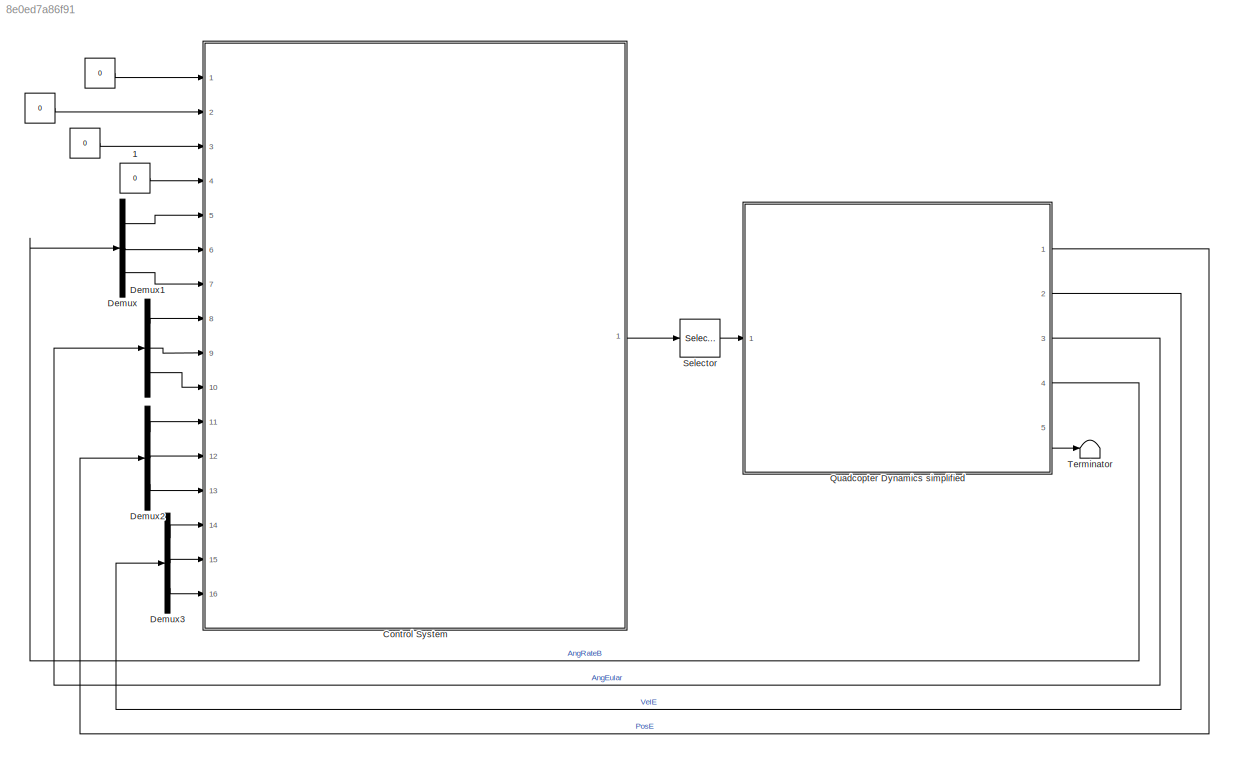
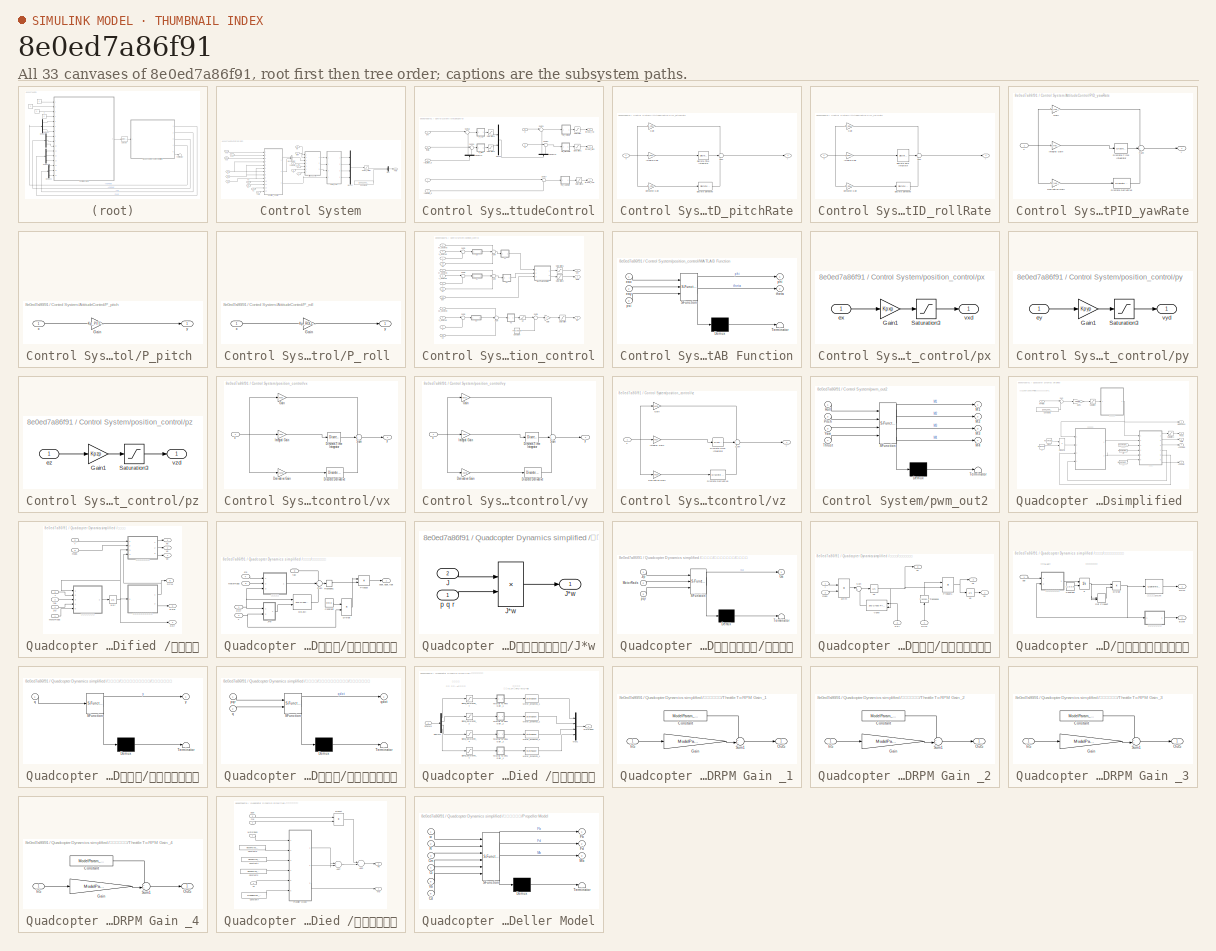
[diagram: thumbnail index - all 33 canvases of the model, root first then tree order]
MODEL slx_8e0ed7a86f91
KIND model
CONFIG AbsTol = auto
CONFIG EnableMultiTasking = off
CONFIG FixedStep = 0.001
CONFIG InitFcn = Init_control;
CONFIG MaxStep = auto
CONFIG MinStep = auto
CONFIG RelTol = 1e-3
CONFIG SampleTimeConstraint = Unconstrained
CONFIG Solver = FixedStepAuto
CONFIG SolverName = FixedStepAuto
CONFIG StartTime = 0.0
CONFIG StopTime = 10
BLOCK [Constant]    
  OutDataTypeStr = uint16
  Value = 0
BLOCK [Constant]       
  OutDataTypeStr = uint16
  Value = 0
BLOCK [Constant]           
  OutDataTypeStr = uint16
  Value = 0
BLOCK [Constant]           1
  OutDataTypeStr = uint16
  Value = 0
BLOCK [SubSystem] Control System
  Ports = [16, 1]
  RequestExecContextInheritance = off
  Variant = off
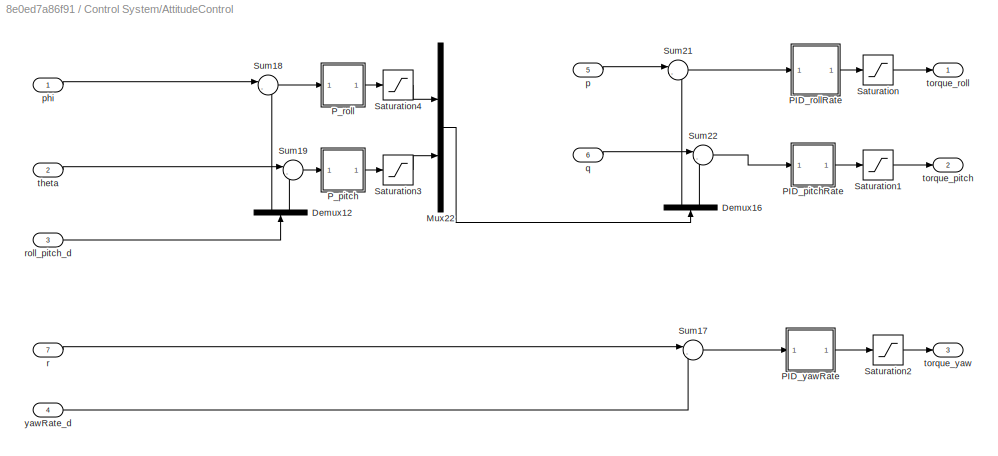
BLOCK [SubSystem] Control System/AttitudeControl
  Ports = [7, 3]
  RequestExecContextInheritance = off
  Variant = off
BLOCK [Demux] Control System/AttitudeControl/Demux12
  DisplayOption = bar
  Outputs = 2
  Ports = [1, 2]
BLOCK [Demux] Control System/AttitudeControl/Demux16
  DisplayOption = bar
  Outputs = 2
  Ports = [1, 2]
BLOCK [Mux] Control System/AttitudeControl/Mux22
  DisplayOption = bar
  Inputs = 2
  Ports = [2, 1]
BLOCK [SubSystem] Control System/AttitudeControl/PID_pitchRate
  Ports = [1, 1]
  RequestExecContextInheritance = off
  Variant = off
BLOCK [Gain] Control System/AttitudeControl/PID_pitchRate/Derivative Gain
  DisableCoverage = on
  Gain = Kd_PITCH_AgngleRate
  OutDataTypeStr = Inherit: Inherit via internal rule
  OutMax = 100
  OutMin = -100
  ParamDataTypeStr = Inherit: Inherit via internal rule
  ParamMax = 100
  ParamMin = -100
  SaturateOnIntegerOverflow = off
BLOCK [Reference] Control System/AttitudeControl/PID_pitchRate/Discrete Derivative  REF=simulink/Discrete/Discrete Derivative
  Ports = [1, 1]
  SourceBlock = simulink/Discrete/Discrete Derivative
  SourceType = Discrete Derivative
BLOCK [DiscreteIntegrator] Control System/AttitudeControl/PID_pitchRate/Discrete-Time Integrator
  ICPrevOutput = DiscIntNeverNeededParam
  ICPrevScaledInput = DiscIntNeverNeededParam
  InitialConditionSetting = State (most efficient)
  LimitOutput = on
  LowerSaturationLimit = Saturation_I_RP_Min
  Ports = [1, 1]
  SampleTime = -1
  UpperSaturationLimit = Saturation_I_RP_Max
BLOCK [Gain] Control System/AttitudeControl/PID_pitchRate/Gain
  Gain = Kp_PITCH_AgngleRate
  OutDataTypeStr = Inherit: Inherit via internal rule
  ParamDataTypeStr = Inherit: Inherit via internal rule
  SaturateOnIntegerOverflow = off
BLOCK [Gain] Control System/AttitudeControl/PID_pitchRate/Integral Gain
  DisableCoverage = on
  Gain = Ki_PITCH_AgngleRate
  OutDataTypeStr = Inherit: Inherit via internal rule
  ParamDataTypeStr = Inherit: Inherit via internal rule
  SaturateOnIntegerOverflow = off
BLOCK [Sum] Control System/AttitudeControl/PID_pitchRate/Sum
  IconShape = round
  InputSameDT = off
  Inputs = +++
  OutDataTypeStr = Inherit: Inherit via internal rule
  Ports = [3, 1]
  SaturateOnIntegerOverflow = off
BLOCK [Inport] Control System/AttitudeControl/PID_pitchRate/x
  IconDisplay = Port number
BLOCK [Outport] Control System/AttitudeControl/PID_pitchRate/y
  IconDisplay = Port number
  InitialOutput = 0
BLOCK [SubSystem] Control System/AttitudeControl/PID_rollRate
  Ports = [1, 1]
  RequestExecContextInheritance = off
  Variant = off
BLOCK [Gain] Control System/AttitudeControl/PID_rollRate/Derivative Gain
  DisableCoverage = on
  Gain = Kd_ROLL_AgngleRate
  OutDataTypeStr = Inherit: Inherit via internal rule
  OutMax = 100
  OutMin = -100
  ParamDataTypeStr = Inherit: Inherit via internal rule
  ParamMax = 100
  ParamMin = -100
  SaturateOnIntegerOverflow = off
BLOCK [Reference] Control System/AttitudeControl/PID_rollRate/Discrete Derivative  REF=simulink/Discrete/Discrete Derivative
  Ports = [1, 1]
  SourceBlock = simulink/Discrete/Discrete Derivative
  SourceType = Discrete Derivative
BLOCK [DiscreteIntegrator] Control System/AttitudeControl/PID_rollRate/Discrete-Time Integrator
  ICPrevOutput = DiscIntNeverNeededParam
  ICPrevScaledInput = DiscIntNeverNeededParam
  InitialConditionSetting = State (most efficient)
  LimitOutput = on
  LowerSaturationLimit = Saturation_I_RP_Min
  Ports = [1, 1]
  SampleTime = -1
  UpperSaturationLimit = Saturation_I_RP_Max
BLOCK [Gain] Control System/AttitudeControl/PID_rollRate/Gain
  Gain = Kp_ROLL_AgngleRate
  OutDataTypeStr = Inherit: Inherit via internal rule
  ParamDataTypeStr = Inherit: Inherit via internal rule
  SaturateOnIntegerOverflow = off
BLOCK [Gain] Control System/AttitudeControl/PID_rollRate/Integral Gain
  DisableCoverage = on
  Gain = Ki_ROLL_AgngleRate
  OutDataTypeStr = Inherit: Inherit via internal rule
  ParamDataTypeStr = Inherit: Inherit via internal rule
  SaturateOnIntegerOverflow = off
BLOCK [Sum] Control System/AttitudeControl/PID_rollRate/Sum
  IconShape = round
  InputSameDT = off
  Inputs = +++
  OutDataTypeStr = Inherit: Inherit via internal rule
  Ports = [3, 1]
  SaturateOnIntegerOverflow = off
BLOCK [Inport] Control System/AttitudeControl/PID_rollRate/x
  IconDisplay = Port number
BLOCK [Outport] Control System/AttitudeControl/PID_rollRate/y
  IconDisplay = Port number
  InitialOutput = 0
BLOCK [SubSystem] Control System/AttitudeControl/PID_yawRate
  Ports = [1, 1]
  RequestExecContextInheritance = off
  Variant = off
BLOCK [Gain] Control System/AttitudeControl/PID_yawRate/Derivative Gain
  DisableCoverage = on
  Gain = Kd_YAW_AngleRate
  OutDataTypeStr = Inherit: Inherit via internal rule
  OutMax = 100
  OutMin = -100
  ParamDataTypeStr = Inherit: Inherit via internal rule
  ParamMax = 100
  ParamMin = -100
  SaturateOnIntegerOverflow = off
BLOCK [Reference] Control System/AttitudeControl/PID_yawRate/Discrete Derivative  REF=simulink/Discrete/Discrete Derivative
  Ports = [1, 1]
  SourceBlock = simulink/Discrete/Discrete Derivative
  SourceType = Discrete Derivative
BLOCK [DiscreteIntegrator] Control System/AttitudeControl/PID_yawRate/Discrete-Time Integrator
  ICPrevOutput = DiscIntNeverNeededParam
  ICPrevScaledInput = DiscIntNeverNeededParam
  InitialConditionSetting = State (most efficient)
  LimitOutput = on
  LowerSaturationLimit = Saturation_I_Y_Min
  Ports = [1, 1]
  SampleTime = -1
  UpperSaturationLimit = Saturation_I_Y_Max
BLOCK [Gain] Control System/AttitudeControl/PID_yawRate/Gain
  Gain = Kp_YAW_AngleRate
  OutDataTypeStr = Inherit: Inherit via internal rule
  ParamDataTypeStr = Inherit: Inherit via internal rule
  SaturateOnIntegerOverflow = off
BLOCK [Gain] Control System/AttitudeControl/PID_yawRate/Integral Gain
  DisableCoverage = on
  Gain = Ki_YAW_AngleRate
  OutDataTypeStr = Inherit: Inherit via internal rule
  ParamDataTypeStr = Inherit: Inherit via internal rule
  SaturateOnIntegerOverflow = off
BLOCK [Sum] Control System/AttitudeControl/PID_yawRate/Sum
  IconShape = round
  InputSameDT = off
  Inputs = +++
  OutDataTypeStr = Inherit: Inherit via internal rule
  Ports = [3, 1]
  SaturateOnIntegerOverflow = off
BLOCK [Inport] Control System/AttitudeControl/PID_yawRate/x
  IconDisplay = Port number
BLOCK [Outport] Control System/AttitudeControl/PID_yawRate/y
  IconDisplay = Port number
  InitialOutput = 0
BLOCK [SubSystem] Control System/AttitudeControl/P_pitch 
  Ports = [1, 1]
  RequestExecContextInheritance = off
  Variant = off
BLOCK [Gain] Control System/AttitudeControl/P_pitch /Gain
  Gain = Kp_PITCH_ANGLE
  OutDataTypeStr = Inherit: Inherit via internal rule
  ParamDataTypeStr = Inherit: Inherit via internal rule
  SaturateOnIntegerOverflow = off
BLOCK [Inport] Control System/AttitudeControl/P_pitch /x
  IconDisplay = Port number
BLOCK [Outport] Control System/AttitudeControl/P_pitch /y
  IconDisplay = Port number
  InitialOutput = 0
BLOCK [SubSystem] Control System/AttitudeControl/P_roll 
  Ports = [1, 1]
  RequestExecContextInheritance = off
  Variant = off
BLOCK [Gain] Control System/AttitudeControl/P_roll /Gain
  Gain = Kp_ROLL_ANGLE
  OutDataTypeStr = Inherit: Inherit via internal rule
  ParamDataTypeStr = Inherit: Inherit via internal rule
  SaturateOnIntegerOverflow = off
BLOCK [Inport] Control System/AttitudeControl/P_roll /x
  IconDisplay = Port number
BLOCK [Outport] Control System/AttitudeControl/P_roll /y
  IconDisplay = Port number
  InitialOutput = 0
BLOCK [Saturate] Control System/AttitudeControl/Saturation
  InputPortMap = u0
  LowerLimit = -1
  Ports = [1, 1]
  UpperLimit = 1
BLOCK [Saturate] Control System/AttitudeControl/Saturation1
  InputPortMap = u0
  LowerLimit = -1
  Ports = [1, 1]
  UpperLimit = 1
BLOCK [Saturate] Control System/AttitudeControl/Saturation2
  InputPortMap = u0
  Ports = [1, 1]
BLOCK [Saturate] Control System/AttitudeControl/Saturation3
  InputPortMap = u0
  LowerLimit = -MAX_CONTROL_ANGLE_RATE_PITCH
  Ports = [1, 1]
  UpperLimit = MAX_CONTROL_ANGLE_RATE_PITCH
BLOCK [Saturate] Control System/AttitudeControl/Saturation4
  InputPortMap = u0
  LowerLimit = -MAX_CONTROL_ANGLE_RATE_ROLL
  Ports = [1, 1]
  UpperLimit = MAX_CONTROL_ANGLE_RATE_ROLL
BLOCK [Sum] Control System/AttitudeControl/Sum17
  IconShape = round
  InputSameDT = off
  Inputs = |-+
  OutDataTypeStr = Inherit: Inherit via internal rule
  Ports = [2, 1]
  SaturateOnIntegerOverflow = off
BLOCK [Sum] Control System/AttitudeControl/Sum18
  IconShape = round
  InputSameDT = off
  Inputs = |-+
  OutDataTypeStr = Inherit: Inherit via internal rule
  Ports = [2, 1]
  SaturateOnIntegerOverflow = off
BLOCK [Sum] Control System/AttitudeControl/Sum19
  IconShape = round
  InputSameDT = off
  Inputs = |-+
  OutDataTypeStr = Inherit: Inherit via internal rule
  Ports = [2, 1]
  SaturateOnIntegerOverflow = off
BLOCK [Sum] Control System/AttitudeControl/Sum21
  IconShape = round
  InputSameDT = off
  Inputs = |-+
  OutDataTypeStr = Inherit: Inherit via internal rule
  Ports = [2, 1]
  SaturateOnIntegerOverflow = off
BLOCK [Sum] Control System/AttitudeControl/Sum22
  IconShape = round
  InputSameDT = off
  Inputs = |-+
  OutDataTypeStr = Inherit: Inherit via internal rule
  Ports = [2, 1]
  SaturateOnIntegerOverflow = off
BLOCK [Inport] Control System/AttitudeControl/p
  IconDisplay = Port number
  Port = 5
BLOCK [Inport] Control System/AttitudeControl/phi
  IconDisplay = Port number
BLOCK [Inport] Control System/AttitudeControl/q
  IconDisplay = Port number
  Port = 6
BLOCK [Inport] Control System/AttitudeControl/r
  IconDisplay = Port number
  Port = 7
BLOCK [Inport] Control System/AttitudeControl/roll_pitch_d
  IconDisplay = Port number
  Port = 3
BLOCK [Inport] Control System/AttitudeControl/theta
  IconDisplay = Port number
  Port = 2
BLOCK [Outport] Control System/AttitudeControl/torque_pitch
  IconDisplay = Port number
  Port = 2
BLOCK [Outport] Control System/AttitudeControl/torque_roll
  IconDisplay = Port number
BLOCK [Outport] Control System/AttitudeControl/torque_yaw
  IconDisplay = Port number
  Port = 3
BLOCK [Inport] Control System/AttitudeControl/yawRate_d
  IconDisplay = Port number
  Port = 4
BLOCK [BusCreator] Control System/Bus Creator
  DisplayOption = bar
  InheritFromInputs = on
  Inputs = 2
  Ports = [2, 1]
BLOCK [Constant] Control System/Constant2
  Value = [1000;1000;1000;1000]
BLOCK [Mux] Control System/Mux
  DisplayOption = bar
  Inputs = 2
  Ports = [2, 1]
BLOCK [Mux] Control System/Mux12
  DisplayOption = bar
  Ports = [4, 1]
BLOCK [Saturate] Control System/Output_Limits1
  InputPortMap = u0
  LowerLimit = 1000
  Ports = [1, 1]
  UpperLimit = 2000
BLOCK [Outport] Control System/PWM
  IconDisplay = Port number
  PortDimensions = 8
  SamplingMode = Sample based
  SignalType = real
BLOCK [Inport] Control System/p
  IconDisplay = Port number
  Port = 5
  PortDimensions = 1
  SamplingMode = Sample based
  SignalType = real
BLOCK [Inport] Control System/pitch
  IconDisplay = Port number
  Port = 9
  PortDimensions = 1
  SamplingMode = Sample based
  SignalType = real
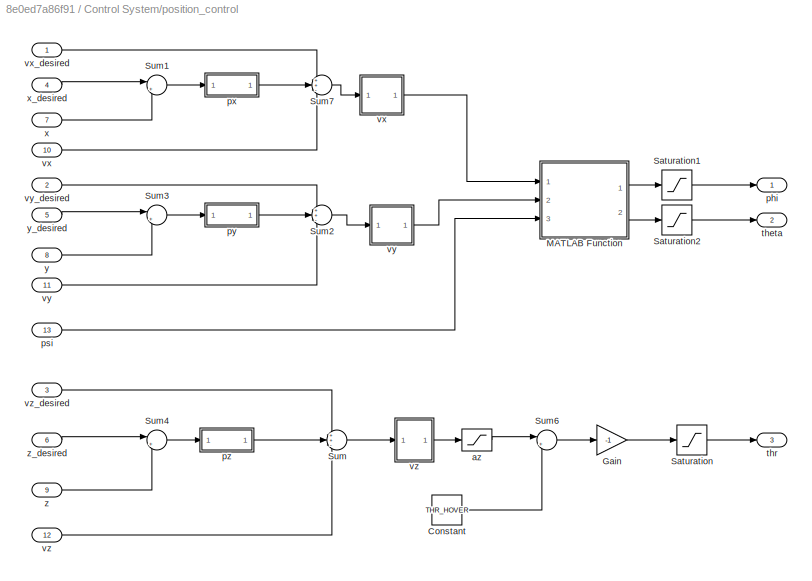
BLOCK [SubSystem] Control System/position_control
  Ports = [13, 3]
  RequestExecContextInheritance = off
  Variant = off
BLOCK [Constant] Control System/position_control/Constant
  Value = THR_HOVER
BLOCK [Gain] Control System/position_control/Gain
  Gain = -1
  OutDataTypeStr = Inherit: Inherit via internal rule
  ParamDataTypeStr = Inherit: Inherit via internal rule
  SaturateOnIntegerOverflow = off
BLOCK [SubSystem] Control System/position_control/MATLAB Function
  ErrorFcn = Stateflow.Translate.translate
  PermitHierarchicalResolution = ExplicitOnly
  Ports = [3, 2]
  RequestExecContextInheritance = off
  SFBlockType = MATLAB Function
  TreatAsAtomicUnit = on
  Variant = off
BLOCK [Demux] Control System/position_control/MATLAB Function/ Demux 
  Outputs = 1
  Ports = [1, 1]
BLOCK [S-Function] Control System/position_control/MATLAB Function/ SFunction 
  EnableBusSupport = on
  FunctionName = sf_sfun
  PortCounts = [3 3]
  Ports = [3, 3]
  SFcnIsStateOwnerBlock = off
  SFunctionDeploymentMode = off
  Tag = Stateflow S-Function PosCtrl_tune 5
BLOCK [Terminator] Control System/position_control/MATLAB Function/ Terminator 
BLOCK [Inport] Control System/position_control/MATLAB Function/eax
  IconDisplay = Port number
BLOCK [Inport] Control System/position_control/MATLAB Function/eay
  IconDisplay = Port number
  Port = 2
BLOCK [Outport] Control System/position_control/MATLAB Function/phi
  IconDisplay = Port number
BLOCK [Inport] Control System/position_control/MATLAB Function/psi
  IconDisplay = Port number
  Port = 3
BLOCK [Outport] Control System/position_control/MATLAB Function/theta
  IconDisplay = Port number
  Port = 2
BLOCK [Saturate] Control System/position_control/Saturation
  InputPortMap = u0
  LowerLimit = 0
  Ports = [1, 1]
  UpperLimit = MAX_MAN_THR
BLOCK [Saturate] Control System/position_control/Saturation1
  InputPortMap = u0
  LowerLimit = -MAX_CONTROL_ANGLE_ROLL*DEG2RAD
  Ports = [1, 1]
  UpperLimit = MAX_CONTROL_ANGLE_ROLL*DEG2RAD
BLOCK [Saturate] Control System/position_control/Saturation2
  InputPortMap = u0
  LowerLimit = -MAX_CONTROL_ANGLE_PITCH*DEG2RAD
  Ports = [1, 1]
  UpperLimit = MAX_CONTROL_ANGLE_PITCH*DEG2RAD
BLOCK [Sum] Control System/position_control/Sum
  IconShape = round
  InputSameDT = off
  Inputs = ++-
  OutDataTypeStr = Inherit: Inherit via internal rule
  Ports = [3, 1]
  SaturateOnIntegerOverflow = off
BLOCK [Sum] Control System/position_control/Sum1
  IconShape = round
  InputSameDT = off
  Inputs = |+-
  OutDataTypeStr = Inherit: Inherit via internal rule
  Ports = [2, 1]
  SaturateOnIntegerOverflow = off
BLOCK [Sum] Control System/position_control/Sum2
  IconShape = round
  InputSameDT = off
  Inputs = ++-
  OutDataTypeStr = Inherit: Inherit via internal rule
  Ports = [3, 1]
  SaturateOnIntegerOverflow = off
BLOCK [Sum] Control System/position_control/Sum3
  IconShape = round
  InputSameDT = off
  Inputs = |+-
  OutDataTypeStr = Inherit: Inherit via internal rule
  Ports = [2, 1]
  SaturateOnIntegerOverflow = off
BLOCK [Sum] Control System/position_control/Sum4
  IconShape = round
  InputSameDT = off
  Inputs = |+-
  OutDataTypeStr = Inherit: Inherit via internal rule
  Ports = [2, 1]
  SaturateOnIntegerOverflow = off
BLOCK [Sum] Control System/position_control/Sum6
  IconShape = round
  InputSameDT = off
  Inputs = |+-
  OutDataTypeStr = Inherit: Inherit via internal rule
  Ports = [2, 1]
  SaturateOnIntegerOverflow = off
BLOCK [Sum] Control System/position_control/Sum7
  IconShape = round
  InputSameDT = off
  Inputs = ++-
  OutDataTypeStr = Inherit: Inherit via internal rule
  Ports = [3, 1]
  SaturateOnIntegerOverflow = off
BLOCK [Saturate] Control System/position_control/az
  InputPortMap = u0
  LowerLimit = -0.4
  Ports = [1, 1]
  UpperLimit = 0.4
BLOCK [Outport] Control System/position_control/phi
  IconDisplay = Port number
BLOCK [Inport] Control System/position_control/psi
  IconDisplay = Port number
  Port = 13
BLOCK [SubSystem] Control System/position_control/px
  Ports = [1, 1]
  RequestExecContextInheritance = off
  Variant = off
BLOCK [Gain] Control System/position_control/px/Gain1
  Gain = Kpxp
  OutDataTypeStr = Inherit: Inherit via internal rule
  ParamDataTypeStr = Inherit: Inherit via internal rule
  SaturateOnIntegerOverflow = off
BLOCK [Saturate] Control System/position_control/px/Saturation3
  InputPortMap = u0
  LowerLimit = -MAX_CONTROL_VELOCITY_XY
  Ports = [1, 1]
  UpperLimit = MAX_CONTROL_VELOCITY_XY
BLOCK [Inport] Control System/position_control/px/ex
  IconDisplay = Port number
BLOCK [Outport] Control System/position_control/px/vxd
  IconDisplay = Port number
BLOCK [SubSystem] Control System/position_control/py
  Ports = [1, 1]
  RequestExecContextInheritance = off
  Variant = off
BLOCK [Gain] Control System/position_control/py/Gain1
  Gain = Kpyp
  OutDataTypeStr = Inherit: Inherit via internal rule
  ParamDataTypeStr = Inherit: Inherit via internal rule
  SaturateOnIntegerOverflow = off
BLOCK [Saturate] Control System/position_control/py/Saturation3
  InputPortMap = u0
  LowerLimit = -MAX_CONTROL_VELOCITY_XY
  Ports = [1, 1]
  UpperLimit = MAX_CONTROL_VELOCITY_XY
BLOCK [Inport] Control System/position_control/py/ey
  IconDisplay = Port number
BLOCK [Outport] Control System/position_control/py/vyd
  IconDisplay = Port number
BLOCK [SubSystem] Control System/position_control/pz
  Ports = [1, 1]
  RequestExecContextInheritance = off
  Variant = off
BLOCK [Gain] Control System/position_control/pz/Gain1
  Gain = Kpzp
  OutDataTypeStr = Inherit: Inherit via internal rule
  ParamDataTypeStr = Inherit: Inherit via internal rule
  SaturateOnIntegerOverflow = off
BLOCK [Saturate] Control System/position_control/pz/Saturation3
  InputPortMap = u0
  LowerLimit = -MAX_CONTROL_VELOCITY_Z
  Ports = [1, 1]
  UpperLimit = MAX_CONTROL_VELOCITY_Z
BLOCK [Inport] Control System/position_control/pz/ez
  IconDisplay = Port number
BLOCK [Outport] Control System/position_control/pz/vzd
  IconDisplay = Port number
BLOCK [Outport] Control System/position_control/theta
  IconDisplay = Port number
  Port = 2
BLOCK [Outport] Control System/position_control/thr
  IconDisplay = Port number
  Port = 3
BLOCK [Inport] Control System/position_control/vx
  IconDisplay = Port number
  Port = 10
BLOCK [SubSystem] Control System/position_control/vx 
  Ports = [1, 1]
  RequestExecContextInheritance = off
  Variant = off
BLOCK [Gain] Control System/position_control/vx /Derivative Gain
  DisableCoverage = on
  Gain = Kvxd
  OutDataTypeStr = Inherit: Inherit via internal rule
  ParamDataTypeStr = Inherit: Inherit via internal rule
  SaturateOnIntegerOverflow = off
BLOCK [Reference] Control System/position_control/vx /Discrete Derivative  REF=simulink/Discrete/Discrete Derivative
  Ports = [1, 1]
  SourceBlock = simulink/Discrete/Discrete Derivative
  SourceType = Discrete Derivative
BLOCK [DiscreteIntegrator] Control System/position_control/vx /Discrete-Time Integrator
  ICPrevOutput = DiscIntNeverNeededParam
  ICPrevScaledInput = DiscIntNeverNeededParam
  InitialConditionSetting = State (most efficient)
  LimitOutput = on
  LowerSaturationLimit = -Saturation_I_ah
  Ports = [1, 1]
  SampleTime = -1
  UpperSaturationLimit = Saturation_I_ah
BLOCK [Gain] Control System/position_control/vx /Gain
  Gain = Kvxp
  OutDataTypeStr = Inherit: Inherit via internal rule
  ParamDataTypeStr = Inherit: Inherit via internal rule
  SaturateOnIntegerOverflow = off
BLOCK [Gain] Control System/position_control/vx /Integral Gain
  DisableCoverage = on
  Gain = Kvxi
  OutDataTypeStr = Inherit: Inherit via internal rule
  ParamDataTypeStr = Inherit: Inherit via internal rule
  SaturateOnIntegerOverflow = off
BLOCK [Sum] Control System/position_control/vx /Sum
  IconShape = round
  InputSameDT = off
  Inputs = +++
  OutDataTypeStr = Inherit: Inherit via internal rule
  Ports = [3, 1]
  SaturateOnIntegerOverflow = off
BLOCK [Inport] Control System/position_control/vx /x
  IconDisplay = Port number
BLOCK [Outport] Control System/position_control/vx /y
  IconDisplay = Port number
  InitialOutput = 0
BLOCK [Inport] Control System/position_control/vx_desired
  IconDisplay = Port number
BLOCK [Inport] Control System/position_control/vy
  IconDisplay = Port number
  Port = 11
BLOCK [SubSystem] Control System/position_control/vy 
  Ports = [1, 1]
  RequestExecContextInheritance = off
  Variant = off
BLOCK [Gain] Control System/position_control/vy /Derivative Gain
  DisableCoverage = on
  Gain = Kvyd
  OutDataTypeStr = Inherit: Inherit via internal rule
  ParamDataTypeStr = Inherit: Inherit via internal rule
  SaturateOnIntegerOverflow = off
BLOCK [Reference] Control System/position_control/vy /Discrete Derivative  REF=simulink/Discrete/Discrete Derivative
  Ports = [1, 1]
  SourceBlock = simulink/Discrete/Discrete Derivative
  SourceType = Discrete Derivative
BLOCK [DiscreteIntegrator] Control System/position_control/vy /Discrete-Time Integrator
  ICPrevOutput = DiscIntNeverNeededParam
  ICPrevScaledInput = DiscIntNeverNeededParam
  InitialConditionSetting = State (most efficient)
  LimitOutput = on
  LowerSaturationLimit = -Saturation_I_ah
  Ports = [1, 1]
  SampleTime = -1
  UpperSaturationLimit = Saturation_I_ah
BLOCK [Gain] Control System/position_control/vy /Gain
  Gain = Kvyp
  OutDataTypeStr = Inherit: Inherit via internal rule
  ParamDataTypeStr = Inherit: Inherit via internal rule
  SaturateOnIntegerOverflow = off
BLOCK [Gain] Control System/position_control/vy /Integral Gain
  DisableCoverage = on
  Gain = Kvyi
  OutDataTypeStr = Inherit: Inherit via internal rule
  ParamDataTypeStr = Inherit: Inherit via internal rule
  SaturateOnIntegerOverflow = off
BLOCK [Sum] Control System/position_control/vy /Sum
  IconShape = round
  InputSameDT = off
  Inputs = +++
  OutDataTypeStr = Inherit: Inherit via internal rule
  OutMax = 5
  OutMin = -5
  Ports = [3, 1]
  SaturateOnIntegerOverflow = off
BLOCK [Inport] Control System/position_control/vy /x
  IconDisplay = Port number
BLOCK [Outport] Control System/position_control/vy /y
  IconDisplay = Port number
  InitialOutput = 0
BLOCK [Inport] Control System/position_control/vy_desired
  IconDisplay = Port number
  Port = 2
BLOCK [Inport] Control System/position_control/vz
  IconDisplay = Port number
  Port = 12
BLOCK [SubSystem] Control System/position_control/vz 
  Ports = [1, 1]
  RequestExecContextInheritance = off
  Variant = off
BLOCK [Gain] Control System/position_control/vz /Derivative Gain
  DisableCoverage = on
  Gain = Kvzd
  OutDataTypeStr = Inherit: Inherit via internal rule
  ParamDataTypeStr = Inherit: Inherit via internal rule
  SaturateOnIntegerOverflow = off
BLOCK [Reference] Control System/position_control/vz /Discrete Derivative  REF=simulink/Discrete/Discrete Derivative
  Ports = [1, 1]
  SourceBlock = simulink/Discrete/Discrete Derivative
  SourceType = Discrete Derivative
BLOCK [DiscreteIntegrator] Control System/position_control/vz /Discrete-Time Integrator
  ICPrevOutput = DiscIntNeverNeededParam
  ICPrevScaledInput = DiscIntNeverNeededParam
  InitialConditionSetting = State (most efficient)
  LimitOutput = on
  LowerSaturationLimit = -Saturation_I_az
  Ports = [1, 1]
  SampleTime = -1
  UpperSaturationLimit = Saturation_I_az
BLOCK [Gain] Control System/position_control/vz /Gain
  Gain = Kvzp
  OutDataTypeStr = Inherit: Inherit via internal rule
  ParamDataTypeStr = Inherit: Inherit via internal rule
  SaturateOnIntegerOverflow = off
BLOCK [Gain] Control System/position_control/vz /Integral Gain
  DisableCoverage = on
  Gain = Kvzi
  OutDataTypeStr = Inherit: Inherit via internal rule
  ParamDataTypeStr = Inherit: Inherit via internal rule
  SaturateOnIntegerOverflow = off
BLOCK [Sum] Control System/position_control/vz /Sum
  IconShape = round
  InputSameDT = off
  Inputs = +++
  OutDataTypeStr = Inherit: Inherit via internal rule
  Ports = [3, 1]
  SaturateOnIntegerOverflow = off
BLOCK [Inport] Control System/position_control/vz /x
  IconDisplay = Port number
BLOCK [Outport] Control System/position_control/vz /y
  IconDisplay = Port number
  InitialOutput = 0
BLOCK [Inport] Control System/position_control/vz_desired
  IconDisplay = Port number
  Port = 3
BLOCK [Inport] Control System/position_control/x
  IconDisplay = Port number
  Port = 7
BLOCK [Inport] Control System/position_control/x_desired
  IconDisplay = Port number
  Port = 4
BLOCK [Inport] Control System/position_control/y
  IconDisplay = Port number
  Port = 8
BLOCK [Inport] Control System/position_control/y_desired
  IconDisplay = Port number
  Port = 5
BLOCK [Inport] Control System/position_control/z
  IconDisplay = Port number
  Port = 9
BLOCK [Inport] Control System/position_control/z_desired
  IconDisplay = Port number
  Port = 6
BLOCK [SubSystem] Control System/pwm_out2
  ErrorFcn = Stateflow.Translate.translate
  PermitHierarchicalResolution = ExplicitOnly
  Ports = [4, 4]
  RequestExecContextInheritance = off
  SFBlockType = MATLAB Function
  SystemSampleTime = 0.004
  Variant = off
BLOCK [Demux] Control System/pwm_out2/ Demux 
  Outputs = 1
  Ports = [1, 1]
BLOCK [S-Function] Control System/pwm_out2/ SFunction 
  EnableBusSupport = on
  FunctionName = sf_sfun
  PortCounts = [4 5]
  Ports = [4, 5]
  SFcnIsStateOwnerBlock = off
  SFunctionDeploymentMode = off
  Tag = Stateflow S-Function PosCtrl_tune 6
BLOCK [Terminator] Control System/pwm_out2/ Terminator 
BLOCK [Outport] Control System/pwm_out2/M1
  IconDisplay = Port number
BLOCK [Outport] Control System/pwm_out2/M2
  IconDisplay = Port number
  Port = 2
BLOCK [Outport] Control System/pwm_out2/M3
  IconDisplay = Port number
  Port = 3
BLOCK [Outport] Control System/pwm_out2/M4
  IconDisplay = Port number
  Port = 4
BLOCK [Inport] Control System/pwm_out2/Pitch
  IconDisplay = Port number
  Port = 2
BLOCK [Inport] Control System/pwm_out2/Roll
  IconDisplay = Port number
BLOCK [Inport] Control System/pwm_out2/Thrust
  IconDisplay = Port number
  Port = 4
BLOCK [Inport] Control System/pwm_out2/Yaw
  IconDisplay = Port number
  Port = 3
BLOCK [Inport] Control System/q
  IconDisplay = Port number
  Port = 6
  PortDimensions = 1
  SamplingMode = Sample based
  SignalType = real
BLOCK [Inport] Control System/r
  IconDisplay = Port number
  Port = 7
  PortDimensions = 1
  SamplingMode = Sample based
  SignalType = real
BLOCK [Inport] Control System/roll
  IconDisplay = Port number
  Port = 8
  PortDimensions = 1
  SamplingMode = Sample based
  SignalType = real
BLOCK [Inport] Control System/vx
  IconDisplay = Port number
  Port = 14
BLOCK [Inport] Control System/vxd
  IconDisplay = Port number
BLOCK [Inport] Control System/vy
  IconDisplay = Port number
  Port = 15
BLOCK [Inport] Control System/vyd
  IconDisplay = Port number
  Port = 2
BLOCK [Inport] Control System/vz
  IconDisplay = Port number
  Port = 16
BLOCK [Inport] Control System/vzd
  IconDisplay = Port number
  Port = 3
BLOCK [Inport] Control System/x
  IconDisplay = Port number
  Port = 11
BLOCK [Inport] Control System/y
  IconDisplay = Port number
  Port = 12
BLOCK [Inport] Control System/yaw
  IconDisplay = Port number
  Port = 10
  PortDimensions = 1
  SamplingMode = Sample based
  SignalType = real
BLOCK [Inport] Control System/yawRate_d
  IconDisplay = Port number
  Port = 4
BLOCK [Inport] Control System/z
  IconDisplay = Port number
  Port = 13
BLOCK [Demux] Demux
  DisplayOption = bar
  Outputs = 3
  Ports = [1, 3]
BLOCK [Demux] Demux1
  DisplayOption = bar
  Outputs = 3
  Ports = [1, 3]
BLOCK [Demux] Demux2
  DisplayOption = bar
  Outputs = 3
  Ports = [1, 3]
BLOCK [Demux] Demux3
  DisplayOption = bar
  Outputs = 3
  Ports = [1, 3]
BLOCK [SubSystem] Quadcopter Dynamics simplified 
  Ports = [1, 5]
  RequestExecContextInheritance = off
  Variant = off
BLOCK [Outport] Quadcopter Dynamics simplified /AngEuler
  IconDisplay = Port number
  Port = 3
BLOCK [Outport] Quadcopter Dynamics simplified /AngRateB
  IconDisplay = Port number
  Port = 4
BLOCK [Constant] Quadcopter Dynamics simplified /Constant2
  Value = [1000,1000,1000,1000]
BLOCK [Gain] Quadcopter Dynamics simplified /Gain1
  Gain = 1/1000
  OutDataTypeStr = Inherit: Inherit via internal rule
  ParamDataTypeStr = Inherit: Inherit via internal rule
  SaturateOnIntegerOverflow = off
BLOCK [Constant] Quadcopter Dynamics simplified /Jrp
  Value = ModelParam_motorJm
BLOCK [Outport] Quadcopter Dynamics simplified /MotaoRads
  IconDisplay = Port number
  Port = 5
BLOCK [Outport] Quadcopter Dynamics simplified /PosE
  IconDisplay = Port number
BLOCK [Product] Quadcopter Dynamics simplified /Product1
  InputSameDT = off
  OutDataTypeStr = Inherit: Inherit via internal rule
  Ports = [2, 1]
  RndMeth = Floor
  SaturateOnIntegerOverflow = off
BLOCK [Saturate] Quadcopter Dynamics simplified /Saturation
  InputPortMap = u0
  LowerLimit = 0
  Ports = [1, 1]
  UpperLimit = 1
BLOCK [Saturate] Quadcopter Dynamics simplified /Saturation1
  InputPortMap = u0
  LowerLimit = [-inf,-inf,-inf]
  Ports = [1, 1]
  UpperLimit = [inf,inf,0]
BLOCK [Sum] Quadcopter Dynamics simplified /Sum
  IconShape = round
  InputSameDT = off
  Inputs = |+-
  OutDataTypeStr = Inherit: Inherit via internal rule
  Ports = [2, 1]
  SaturateOnIntegerOverflow = off
BLOCK [Outport] Quadcopter Dynamics simplified /VelE
  IconDisplay = Port number
  Port = 2
BLOCK [Constant] Quadcopter Dynamics simplified /g
  Value = [0,0,ModelParam_envGravityAcc]
BLOCK [Inport] Quadcopter Dynamics simplified /inPWMs
  IconDisplay = Port number
BLOCK [Constant] Quadcopter Dynamics simplified /mass
  Value = ModelParam_uavMass
BLOCK [SubSystem] Quadcopter Dynamics simplified /刚体模型
  Ports = [6, 6]
  RequestExecContextInheritance = off
  Variant = off
BLOCK [Outport] Quadcopter Dynamics simplified /刚体模型/DCM
  IconDisplay = Port number
  Port = 5
BLOCK [Outport] Quadcopter Dynamics simplified /刚体模型/Euler
  IconDisplay = Port number
  Port = 6
BLOCK [Inport] Quadcopter Dynamics simplified /刚体模型/J
  IconDisplay = Port number
  Port = 3
BLOCK [Inport] Quadcopter Dynamics simplified /刚体模型/Jrp
  IconDisplay = Port number
  Port = 4
BLOCK [Inport] Quadcopter Dynamics simplified /刚体模型/MotorRads
  IconDisplay = Port number
BLOCK [Inport] Quadcopter Dynamics simplified /刚体模型/f
  IconDisplay = Port number
  Port = 5
BLOCK [Inport] Quadcopter Dynamics simplified /刚体模型/mass
  IconDisplay = Port number
  Port = 6
BLOCK [Integrator] Quadcopter Dynamics simplified /刚体模型/p,q,r
  Ports = [1, 1]
BLOCK [Outport] Quadcopter Dynamics simplified /刚体模型/p,q,r 
  IconDisplay = Port number
  Port = 3
BLOCK [Inport] Quadcopter Dynamics simplified /刚体模型/tao
  IconDisplay = Port number
  Port = 2
BLOCK [Outport] Quadcopter Dynamics simplified /刚体模型/vb 
  IconDisplay = Port number
  Port = 4
BLOCK [Outport] Quadcopter Dynamics simplified /刚体模型/ve
  IconDisplay = Port number
  Port = 2
BLOCK [Outport] Quadcopter Dynamics simplified /刚体模型/xe 
  IconDisplay = Port number
BLOCK [SubSystem] Quadcopter Dynamics simplified /刚体模型/刚体动力学模型
  Ports = [5, 1]
  RequestExecContextInheritance = off
  Variant = off
BLOCK [Constant] Quadcopter Dynamics simplified /刚体模型/刚体动力学模型/Constant
  Value = eye(3)
BLOCK [Product] Quadcopter Dynamics simplified /刚体模型/刚体动力学模型/Divide
  InputSameDT = off
  Inputs = */
  Multiplication = Matrix(*)
  OutDataTypeStr = Inherit: Inherit via internal rule
  Ports = [2, 1]
  RndMeth = Floor
  SaturateOnIntegerOverflow = off
BLOCK [Inport] Quadcopter Dynamics simplified /刚体模型/刚体动力学模型/J
  IconDisplay = Port number
  Port = 2
BLOCK [SubSystem] Quadcopter Dynamics simplified /刚体模型/刚体动力学模型/J*w
  Ports = [2, 1]
  RequestExecContextInheritance = off
  Variant = off
BLOCK [Inport] Quadcopter Dynamics simplified /刚体模型/刚体动力学模型/J*w/J
  IconDisplay = Port number
  Port = 2
BLOCK [Product] Quadcopter Dynamics simplified /刚体模型/刚体动力学模型/J*w/J*w
  InputSameDT = off
  Multiplication = Matrix(*)
  OutDataTypeStr = Inherit: Inherit via internal rule
  Ports = [2, 1]
  RndMeth = Floor
  SaturateOnIntegerOverflow = off
BLOCK [Outport] Quadcopter Dynamics simplified /刚体模型/刚体动力学模型/J*w/J*w 
  IconDisplay = Port number
BLOCK [Inport] Quadcopter Dynamics simplified /刚体模型/刚体动力学模型/J*w/p q r
  IconDisplay = Port number
BLOCK [Inport] Quadcopter Dynamics simplified /刚体模型/刚体动力学模型/Jrp
  IconDisplay = Port number
  Port = 4
BLOCK [Inport] Quadcopter Dynamics simplified /刚体模型/刚体动力学模型/MotorRads
  IconDisplay = Port number
  Port = 5
BLOCK [Product] Quadcopter Dynamics simplified /刚体模型/刚体动力学模型/Product
  InputSameDT = off
  Multiplication = Matrix(*)
  OutDataTypeStr = Inherit: Inherit via internal rule
  Ports = [2, 1]
  RndMeth = Floor
  SaturateOnIntegerOverflow = off
BLOCK [Reshape] Quadcopter Dynamics simplified /刚体模型/刚体动力学模型/Reshape1
  OutputDimensionality = Column vector (2-D)
  Ports = [1, 1]
BLOCK [Sum] Quadcopter Dynamics simplified /刚体模型/刚体动力学模型/Sum
  IconShape = round
  InputSameDT = off
  Inputs = 3
  OutDataTypeStr = Inherit: Inherit via internal rule
  Ports = [3, 1]
  SaturateOnIntegerOverflow = off
BLOCK [Inport] Quadcopter Dynamics simplified /刚体模型/刚体动力学模型/p q r
  IconDisplay = Port number
BLOCK [Outport] Quadcopter Dynamics simplified /刚体模型/刚体动力学模型/pdot,qdot,rdot
  IconDisplay = Port number
BLOCK [Inport] Quadcopter Dynamics simplified /刚体模型/刚体动力学模型/tao
  IconDisplay = Port number
  Port = 3
BLOCK [Reference] Quadcopter Dynamics simplified /刚体模型/刚体动力学模型/wx(Jw)  REF=aerolibutil/3x3 Cross Product
  Ports = [2, 1]
  SourceBlock = aerolibutil/3x3 Cross Product
  SourceType = CrossProduct
BLOCK [SubSystem] Quadcopter Dynamics simplified /刚体模型/刚体动力学模型/陀螺力矩
  ErrorFcn = Stateflow.Translate.translate
  PermitHierarchicalResolution = ExplicitOnly
  Ports = [3, 1]
  RequestExecContextInheritance = off
  SFBlockType = MATLAB Function
  TreatAsAtomicUnit = on
  Variant = off
BLOCK [Demux] Quadcopter Dynamics simplified /刚体模型/刚体动力学模型/陀螺力矩/ Demux 
  Outputs = 1
  Ports = [1, 1]
BLOCK [S-Function] Quadcopter Dynamics simplified /刚体模型/刚体动力学模型/陀螺力矩/ SFunction 
  EnableBusSupport = on
  FunctionName = sf_sfun
  PortCounts = [3 2]
  Ports = [3, 2]
  SFcnIsStateOwnerBlock = off
  SFunctionDeploymentMode = off
  Tag = Stateflow S-Function PosCtrl_tune 7
BLOCK [Terminator] Quadcopter Dynamics simplified /刚体模型/刚体动力学模型/陀螺力矩/ Terminator 
BLOCK [Outport] Quadcopter Dynamics simplified /刚体模型/刚体动力学模型/陀螺力矩/Ga
  IconDisplay = Port number
BLOCK [Inport] Quadcopter Dynamics simplified /刚体模型/刚体动力学模型/陀螺力矩/Jrp
  IconDisplay = Port number
BLOCK [Inport] Quadcopter Dynamics simplified /刚体模型/刚体动力学模型/陀螺力矩/MotorRads
  IconDisplay = Port number
  Port = 2
BLOCK [Inport] Quadcopter Dynamics simplified /刚体模型/刚体动力学模型/陀螺力矩/pqr
  IconDisplay = Port number
  Port = 3
BLOCK [SubSystem] Quadcopter Dynamics simplified /刚体模型/刚体运动学模型
  Ports = [4, 3]
  RequestExecContextInheritance = off
  Variant = off
BLOCK [Inport] Quadcopter Dynamics simplified /刚体模型/刚体运动学模型/DCM
  IconDisplay = Port number
  Port = 4
BLOCK [Product] Quadcopter Dynamics simplified /刚体模型/刚体运动学模型/Product1
  InputSameDT = off
  Multiplication = Matrix(*)
  OutDataTypeStr = Inherit: Inherit via internal rule
  Ports = [2, 1]
  RndMeth = Floor
  SaturateOnIntegerOverflow = off
BLOCK [Sum] Quadcopter Dynamics simplified /刚体模型/刚体运动学模型/Sum
  IconShape = round
  InputSameDT = off
  Inputs = |+-
  OutDataTypeStr = Inherit: Inherit via internal rule
  Ports = [2, 1]
  SaturateOnIntegerOverflow = off
BLOCK [Math] Quadcopter Dynamics simplified /刚体模型/刚体运动学模型/Transpose
  Operator = transpose
  Ports = [1, 1]
BLOCK [Reference] Quadcopter Dynamics simplified /刚体模型/刚体运动学模型/Vbxw  REF=aerolibutil/3x3 Cross Product
  Ports = [2, 1]
  SourceBlock = aerolibutil/3x3 Cross Product
  SourceType = CrossProduct
BLOCK [Product] Quadcopter Dynamics simplified /刚体模型/刚体运动学模型/a=f//m
  InputSameDT = off
  Inputs = */
  OutDataTypeStr = Inherit: Inherit via internal rule
  Ports = [2, 1]
  RndMeth = Floor
  SaturateOnIntegerOverflow = off
BLOCK [Inport] Quadcopter Dynamics simplified /刚体模型/刚体运动学模型/f
  IconDisplay = Port number
BLOCK [Inport] Quadcopter Dynamics simplified /刚体模型/刚体运动学模型/mass
  IconDisplay = Port number
  Port = 2
BLOCK [Inport] Quadcopter Dynamics simplified /刚体模型/刚体运动学模型/p q r
  IconDisplay = Port number
  Port = 3
BLOCK [Integrator] Quadcopter Dynamics simplified /刚体模型/刚体运动学模型/vb
  Ports = [1, 1]
BLOCK [Outport] Quadcopter Dynamics simplified /刚体模型/刚体运动学模型/vb 
  IconDisplay = Port number
  Port = 3
BLOCK [Outport] Quadcopter Dynamics simplified /刚体模型/刚体运动学模型/ve
  IconDisplay = Port number
  Port = 2
BLOCK [Integrator] Quadcopter Dynamics simplified /刚体模型/刚体运动学模型/xe
  Ports = [1, 1]
BLOCK [Outport] Quadcopter Dynamics simplified /刚体模型/刚体运动学模型/xe 
  IconDisplay = Port number
BLOCK [SubSystem] Quadcopter Dynamics simplified /刚体模型/计算旋转矩阵和欧拉角
  Ports = [1, 2]
  RequestExecContextInheritance = off
  Variant = off
BLOCK [Constant] Quadcopter Dynamics simplified /刚体模型/计算旋转矩阵和欧拉角/Constant
  Value = [1,0,0,0]
BLOCK [Outport] Quadcopter Dynamics simplified /刚体模型/计算旋转矩阵和欧拉角/DCM
  IconDisplay = Port number
BLOCK [Product] Quadcopter Dynamics simplified /刚体模型/计算旋转矩阵和欧拉角/Divide
  InputSameDT = off
  Inputs = */
  OutDataTypeStr = Inherit: Inherit via internal rule
  Ports = [2, 1]
  RndMeth = Floor
  SaturateOnIntegerOverflow = off
BLOCK [DotProduct] Quadcopter Dynamics simplified /刚体模型/计算旋转矩阵和欧拉角/Dot Product
  OutDataTypeStr = Inherit: Inherit via internal rule
BLOCK [Outport] Quadcopter Dynamics simplified /刚体模型/计算旋转矩阵和欧拉角/Euler
  IconDisplay = Port number
  Port = 2
BLOCK [Inport] Quadcopter Dynamics simplified /刚体模型/计算旋转矩阵和欧拉角/pqr
  IconDisplay = Port number
BLOCK [Integrator] Quadcopter Dynamics simplified /刚体模型/计算旋转矩阵和欧拉角/q
  InitialConditionSource = external
  Ports = [2, 1]
BLOCK [Reference] Quadcopter Dynamics simplified /刚体模型/计算旋转矩阵和欧拉角/四元数转DCM  REF=aerolibtransform2/Quaternions to 
Direction Cosine Matrix
  Ports = [1, 1]
  SourceBlock = aerolibtransform2/Quaternions to \nDirection Cosine Matrix
  SourceType = Quaternion2DCM
BLOCK [SubSystem] Quadcopter Dynamics simplified /刚体模型/计算旋转矩阵和欧拉角/四元数转欧拉角
  ErrorFcn = Stateflow.Translate.translate
  PermitHierarchicalResolution = ExplicitOnly
  Ports = [1, 1]
  RequestExecContextInheritance = off
  SFBlockType = MATLAB Function
  Variant = off
BLOCK [Demux] Quadcopter Dynamics simplified /刚体模型/计算旋转矩阵和欧拉角/四元数转欧拉角/ Demux 
  Outputs = 1
  Ports = [1, 1]
BLOCK [S-Function] Quadcopter Dynamics simplified /刚体模型/计算旋转矩阵和欧拉角/四元数转欧拉角/ SFunction 
  EnableBusSupport = on
  FunctionName = sf_sfun
  PortCounts = [1 2]
  Ports = [1, 2]
  SFcnIsStateOwnerBlock = off
  SFunctionDeploymentMode = off
  Tag = Stateflow S-Function PosCtrl_tune 8
BLOCK [Terminator] Quadcopter Dynamics simplified /刚体模型/计算旋转矩阵和欧拉角/四元数转欧拉角/ Terminator 
BLOCK [Inport] Quadcopter Dynamics simplified /刚体模型/计算旋转矩阵和欧拉角/四元数转欧拉角/q
  IconDisplay = Port number
BLOCK [Outport] Quadcopter Dynamics simplified /刚体模型/计算旋转矩阵和欧拉角/四元数转欧拉角/y
  IconDisplay = Port number
BLOCK [SubSystem] Quadcopter Dynamics simplified /刚体模型/计算旋转矩阵和欧拉角/基于四元数模型
  ErrorFcn = Stateflow.Translate.translate
  PermitHierarchicalResolution = ExplicitOnly
  Ports = [2, 1]
  RequestExecContextInheritance = off
  SFBlockType = MATLAB Function
  TreatAsAtomicUnit = on
  Variant = off
BLOCK [Demux] Quadcopter Dynamics simplified /刚体模型/计算旋转矩阵和欧拉角/基于四元数模型/ Demux 
  Outputs = 1
  Ports = [1, 1]
BLOCK [S-Function] Quadcopter Dynamics simplified /刚体模型/计算旋转矩阵和欧拉角/基于四元数模型/ SFunction 
  EnableBusSupport = on
  FunctionName = sf_sfun
  PortCounts = [2 2]
  Ports = [2, 2]
  SFcnIsStateOwnerBlock = off
  SFunctionDeploymentMode = off
  Tag = Stateflow S-Function PosCtrl_tune 9
BLOCK [Terminator] Quadcopter Dynamics simplified /刚体模型/计算旋转矩阵和欧拉角/基于四元数模型/ Terminator 
BLOCK [Inport] Quadcopter Dynamics simplified /刚体模型/计算旋转矩阵和欧拉角/基于四元数模型/pqr
  IconDisplay = Port number
BLOCK [Inport] Quadcopter Dynamics simplified /刚体模型/计算旋转矩阵和欧拉角/基于四元数模型/q
  IconDisplay = Port number
  Port = 2
BLOCK [Outport] Quadcopter Dynamics simplified /刚体模型/计算旋转矩阵和欧拉角/基于四元数模型/qdot
  IconDisplay = Port number
BLOCK [SubSystem] Quadcopter Dynamics simplified /动力单元模型
  Ports = [1, 1]
  RequestExecContextInheritance = off
  Variant = off
BLOCK [Demux] Quadcopter Dynamics simplified /动力单元模型/Demux1
  DisplayOption = bar
  Ports = [1, 4]
BLOCK [Outport] Quadcopter Dynamics simplified /动力单元模型/MotorRads
  IconDisplay = Port number
BLOCK [StateSpace] Quadcopter Dynamics simplified /动力单元模型/Motor_Dynamics_1
  A = -1/ModelParam_motorT
  C = 1/ModelParam_motorT
  D = 0
  Ports = [1, 1]
  X0 = ModelInit_RPM*ModelParam_motorT
BLOCK [StateSpace] Quadcopter Dynamics simplified /动力单元模型/Motor_Dynamics_2
  A = -1/ModelParam_motorT
  C = 1/ModelParam_motorT
  D = 0
  Ports = [1, 1]
  X0 = ModelInit_RPM*ModelParam_motorT
BLOCK [StateSpace] Quadcopter Dynamics simplified /动力单元模型/Motor_Dynamics_3
  A = -1/ModelParam_motorT
  C = 1/ModelParam_motorT
  D = 0
  Ports = [1, 1]
  X0 = ModelInit_RPM*ModelParam_motorT
BLOCK [StateSpace] Quadcopter Dynamics simplified /动力单元模型/Motor_Dynamics_4
  A = -1/ModelParam_motorT
  C = 1/ModelParam_motorT
  D = 0
  Ports = [1, 1]
  X0 = ModelInit_RPM*ModelParam_motorT
BLOCK [Mux] Quadcopter Dynamics simplified /动力单元模型/Mux1
  DisplayOption = bar
  Ports = [4, 1]
BLOCK [Saturate] Quadcopter Dynamics simplified /动力单元模型/Signal_Saturation_1
  InputPortMap = u0
  LowerLimit = 0
  Ports = [1, 1]
  UpperLimit = 1
BLOCK [Saturate] Quadcopter Dynamics simplified /动力单元模型/Signal_Saturation_2
  InputPortMap = u0
  LowerLimit = 0
  Ports = [1, 1]
  UpperLimit = 1
BLOCK [Saturate] Quadcopter Dynamics simplified /动力单元模型/Signal_Saturation_3
  InputPortMap = u0
  LowerLimit = 0
  Ports = [1, 1]
  UpperLimit = 1
BLOCK [Saturate] Quadcopter Dynamics simplified /动力单元模型/Signal_Saturation_4
  InputPortMap = u0
  LowerLimit = 0
  Ports = [1, 1]
  UpperLimit = 1
BLOCK [SubSystem] Quadcopter Dynamics simplified /动力单元模型/Throttle To RPM Gain _1
  Ports = [1, 1]
  RequestExecContextInheritance = off
  ShowPortLabels = none
  Variant = off
BLOCK [Constant] Quadcopter Dynamics simplified /动力单元模型/Throttle To RPM Gain _1/Constant
  Value = ModelParam_motorWb
BLOCK [Gain] Quadcopter Dynamics simplified /动力单元模型/Throttle To RPM Gain _1/Gain
  Gain = ModelParam_motorCr
  OutDataTypeStr = Inherit: Inherit via internal rule
  ParamDataTypeStr = Inherit: Inherit via internal rule
  SaturateOnIntegerOverflow = off
BLOCK [Inport] Quadcopter Dynamics simplified /动力单元模型/Throttle To RPM Gain _1/In5
  IconDisplay = Port number
BLOCK [Outport] Quadcopter Dynamics simplified /动力单元模型/Throttle To RPM Gain _1/Out5
  IconDisplay = Port number
BLOCK [Sum] Quadcopter Dynamics simplified /动力单元模型/Throttle To RPM Gain _1/Sum1
  IconShape = round
  InputSameDT = off
  Inputs = ++|
  OutDataTypeStr = Inherit: Inherit via internal rule
  Ports = [2, 1]
  SaturateOnIntegerOverflow = off
BLOCK [SubSystem] Quadcopter Dynamics simplified /动力单元模型/Throttle To RPM Gain _2
  Ports = [1, 1]
  RequestExecContextInheritance = off
  ShowPortLabels = none
  Variant = off
BLOCK [Constant] Quadcopter Dynamics simplified /动力单元模型/Throttle To RPM Gain _2/Constant
  Value = ModelParam_motorWb
BLOCK [Gain] Quadcopter Dynamics simplified /动力单元模型/Throttle To RPM Gain _2/Gain
  Gain = ModelParam_motorCr
  OutDataTypeStr = Inherit: Inherit via internal rule
  ParamDataTypeStr = Inherit: Inherit via internal rule
  SaturateOnIntegerOverflow = off
BLOCK [Inport] Quadcopter Dynamics simplified /动力单元模型/Throttle To RPM Gain _2/In5
  IconDisplay = Port number
BLOCK [Outport] Quadcopter Dynamics simplified /动力单元模型/Throttle To RPM Gain _2/Out5
  IconDisplay = Port number
BLOCK [Sum] Quadcopter Dynamics simplified /动力单元模型/Throttle To RPM Gain _2/Sum1
  IconShape = round
  InputSameDT = off
  Inputs = ++|
  OutDataTypeStr = Inherit: Inherit via internal rule
  Ports = [2, 1]
  SaturateOnIntegerOverflow = off
BLOCK [SubSystem] Quadcopter Dynamics simplified /动力单元模型/Throttle To RPM Gain _3
  Ports = [1, 1]
  RequestExecContextInheritance = off
  ShowPortLabels = none
  Variant = off
BLOCK [Constant] Quadcopter Dynamics simplified /动力单元模型/Throttle To RPM Gain _3/Constant
  Value = ModelParam_motorWb
BLOCK [Gain] Quadcopter Dynamics simplified /动力单元模型/Throttle To RPM Gain _3/Gain
  Gain = ModelParam_motorCr
  OutDataTypeStr = Inherit: Inherit via internal rule
  ParamDataTypeStr = Inherit: Inherit via internal rule
  SaturateOnIntegerOverflow = off
BLOCK [Inport] Quadcopter Dynamics simplified /动力单元模型/Throttle To RPM Gain _3/In5
  IconDisplay = Port number
BLOCK [Outport] Quadcopter Dynamics simplified /动力单元模型/Throttle To RPM Gain _3/Out5
  IconDisplay = Port number
BLOCK [Sum] Quadcopter Dynamics simplified /动力单元模型/Throttle To RPM Gain _3/Sum1
  IconShape = round
  InputSameDT = off
  Inputs = ++|
  OutDataTypeStr = Inherit: Inherit via internal rule
  Ports = [2, 1]
  SaturateOnIntegerOverflow = off
BLOCK [SubSystem] Quadcopter Dynamics simplified /动力单元模型/Throttle To RPM Gain _4
  Ports = [1, 1]
  RequestExecContextInheritance = off
  ShowPortLabels = none
  Variant = off
BLOCK [Constant] Quadcopter Dynamics simplified /动力单元模型/Throttle To RPM Gain _4/Constant
  Value = ModelParam_motorWb
BLOCK [Gain] Quadcopter Dynamics simplified /动力单元模型/Throttle To RPM Gain _4/Gain
  Gain = ModelParam_motorCr
  OutDataTypeStr = Inherit: Inherit via internal rule
  ParamDataTypeStr = Inherit: Inherit via internal rule
  SaturateOnIntegerOverflow = off
BLOCK [Inport] Quadcopter Dynamics simplified /动力单元模型/Throttle To RPM Gain _4/In5
  IconDisplay = Port number
BLOCK [Outport] Quadcopter Dynamics simplified /动力单元模型/Throttle To RPM Gain _4/Out5
  IconDisplay = Port number
BLOCK [Sum] Quadcopter Dynamics simplified /动力单元模型/Throttle To RPM Gain _4/Sum1
  IconShape = round
  InputSameDT = off
  Inputs = ++|
  OutDataTypeStr = Inherit: Inherit via internal rule
  Ports = [2, 1]
  SaturateOnIntegerOverflow = off
BLOCK [Inport] Quadcopter Dynamics simplified /动力单元模型/inPWMs
  IconDisplay = Port number
BLOCK [SubSystem] Quadcopter Dynamics simplified /控制效率模型
  Ports = [4, 2]
  RequestExecContextInheritance = off
  Variant = off
BLOCK [Sum] Quadcopter Dynamics simplified /控制效率模型/Add2
  InputSameDT = off
  OutDataTypeStr = Inherit: Inherit via internal rule
  Ports = [2, 1]
  SaturateOnIntegerOverflow = off
BLOCK [Sum] Quadcopter Dynamics simplified /控制效率模型/Add7
  InputSameDT = off
  OutDataTypeStr = Inherit: Inherit via internal rule
  Ports = [2, 1]
  SaturateOnIntegerOverflow = off
BLOCK [Constant] Quadcopter Dynamics simplified /控制效率模型/Constant3
  Value = ModelParam_rotorCt
BLOCK [Constant] Quadcopter Dynamics simplified /控制效率模型/Constant4
  Value = ModelParam_rotorCm
BLOCK [Constant] Quadcopter Dynamics simplified /控制效率模型/Constant5
  Value = ModelParam_uavR
BLOCK [Constant] Quadcopter Dynamics simplified /控制效率模型/Constant7
  Value = ModelParam_uavCd
BLOCK [Inport] Quadcopter Dynamics simplified /控制效率模型/DCM
  IconDisplay = Port number
  Port = 3
BLOCK [Outport] Quadcopter Dynamics simplified /控制效率模型/Fb
  IconDisplay = Port number
  Port = 2
BLOCK [Outport] Quadcopter Dynamics simplified /控制效率模型/Mb
  IconDisplay = Port number
BLOCK [Inport] Quadcopter Dynamics simplified /控制效率模型/MotorRads
  IconDisplay = Port number
BLOCK [Product] Quadcopter Dynamics simplified /控制效率模型/Product
  InputSameDT = off
  Multiplication = Matrix(*)
  OutDataTypeStr = Inherit: Inherit via internal rule
  Ports = [2, 1]
  RndMeth = Floor
  SaturateOnIntegerOverflow = off
BLOCK [SubSystem] Quadcopter Dynamics simplified /控制效率模型/Propeller Model
  ErrorFcn = Stateflow.Translate.translate
  PermitHierarchicalResolution = ExplicitOnly
  Ports = [6, 3]
  RequestExecContextInheritance = off
  SFBlockType = MATLAB Function
  TreatAsAtomicUnit = on
  Variant = off
BLOCK [Demux] Quadcopter Dynamics simplified /控制效率模型/Propeller Model/ Demux 
  Outputs = 1
  Ports = [1, 1]
BLOCK [S-Function] Quadcopter Dynamics simplified /控制效率模型/Propeller Model/ SFunction 
  EnableBusSupport = on
  FunctionName = sf_sfun
  PortCounts = [6 4]
  Ports = [6, 4]
  SFcnIsStateOwnerBlock = off
  SFunctionDeploymentMode = off
  Tag = Stateflow S-Function PosCtrl_tune 10
BLOCK [Terminator] Quadcopter Dynamics simplified /控制效率模型/Propeller Model/ Terminator 
BLOCK [Inport] Quadcopter Dynamics simplified /控制效率模型/Propeller Model/Cd
  IconDisplay = Port number
  Port = 6
BLOCK [Inport] Quadcopter Dynamics simplified /控制效率模型/Propeller Model/Cm
  IconDisplay = Port number
  Port = 3
BLOCK [Inport] Quadcopter Dynamics simplified /控制效率模型/Propeller Model/Ct
  IconDisplay = Port number
  Port = 4
BLOCK [Outport] Quadcopter Dynamics simplified /控制效率模型/Propeller Model/Fb
  IconDisplay = Port number
BLOCK [Outport] Quadcopter Dynamics simplified /控制效率模型/Propeller Model/Fd
  IconDisplay = Port number
  Port = 2
BLOCK [Outport] Quadcopter Dynamics simplified /控制效率模型/Propeller Model/Mb
  IconDisplay = Port number
  Port = 3
BLOCK [Inport] Quadcopter Dynamics simplified /控制效率模型/Propeller Model/R
  IconDisplay = Port number
  Port = 2
BLOCK [Inport] Quadcopter Dynamics simplified /控制效率模型/Propeller Model/Vb
  IconDisplay = Port number
  Port = 5
BLOCK [Inport] Quadcopter Dynamics simplified /控制效率模型/Propeller Model/w
  IconDisplay = Port number
BLOCK [Inport] Quadcopter Dynamics simplified /控制效率模型/Vb
  IconDisplay = Port number
  Port = 4
BLOCK [Inport] Quadcopter Dynamics simplified /控制效率模型/mg
  IconDisplay = Port number
  Port = 2
BLOCK [Constant] Quadcopter Dynamics simplified /质量
  Value = ModelParam_uavMass
BLOCK [Constant] Quadcopter Dynamics simplified /转动惯量
  Value = ModelParam_uavJ
BLOCK [Selector] Selector
  IndexOptions = Index vector (dialog)
  Indices = [1:4]
  InputPortWidth = 8
  OutputSizes = 1
  Ports = [1, 1]
BLOCK [Terminator] Terminator
ANNOTATION Quadcopter Dynamics simplified : 输入是1000~2000的PWM信号，需要将其归一化到0~1
ANNOTATION Quadcopter Dynamics simplified /刚体模型/计算旋转矩阵和欧拉角: 四元数归一化
ANNOTATION Quadcopter Dynamics simplified /刚体模型/计算旋转矩阵和欧拉角: 式（5.52）
ANNOTATION Quadcopter Dynamics simplified /动力单元模型: 一号电机 饱和 油门-->电机转速
ANNOTATION Quadcopter Dynamics simplified /动力单元模型: 电机动态 公式(6.27)：w=1/(Ts+1)*wb
LINE           1:1 -> Control System:4
LINE           :1 -> Control System:3
LINE       :1 -> Control System:2
LINE    :1 -> Control System:1
LINE Control System/AttitudeControl/Demux12:1 -> Control System/AttitudeControl/Sum18:2
LINE Control System/AttitudeControl/Demux12:2 -> Control System/AttitudeControl/Sum19:2
LINE Control System/AttitudeControl/Demux16:1 -> Control System/AttitudeControl/Sum21:2
LINE Control System/AttitudeControl/Demux16:2 -> Control System/AttitudeControl/Sum22:2
LINE Control System/AttitudeControl/Mux22:1 -> Control System/AttitudeControl/Demux16:1
LINE Control System/AttitudeControl/PID_pitchRate/Derivative Gain:1 -> Control System/AttitudeControl/PID_pitchRate/Discrete Derivative:1
LINE Control System/AttitudeControl/PID_pitchRate/Discrete Derivative:1 -> Control System/AttitudeControl/PID_pitchRate/Sum:3
LINE Control System/AttitudeControl/PID_pitchRate/Discrete-Time Integrator:1 -> Control System/AttitudeControl/PID_pitchRate/Sum:2
LINE Control System/AttitudeControl/PID_pitchRate/Gain:1 -> Control System/AttitudeControl/PID_pitchRate/Sum:1
LINE Control System/AttitudeControl/PID_pitchRate/Integral Gain:1 -> Control System/AttitudeControl/PID_pitchRate/Discrete-Time Integrator:1
LINE Control System/AttitudeControl/PID_pitchRate/Sum:1 -> Control System/AttitudeControl/PID_pitchRate/y:1
NET Control System/AttitudeControl/PID_pitchRate/x:1 -> Control System/AttitudeControl/PID_pitchRate/Derivative Gain:1, Control System/AttitudeControl/PID_pitchRate/Gain:1, Control System/AttitudeControl/PID_pitchRate/Integral Gain:1
LINE Control System/AttitudeControl/PID_pitchRate:1 -> Control System/AttitudeControl/Saturation1:1
LINE Control System/AttitudeControl/PID_rollRate/Derivative Gain:1 -> Control System/AttitudeControl/PID_rollRate/Discrete Derivative:1
LINE Control System/AttitudeControl/PID_rollRate/Discrete Derivative:1 -> Control System/AttitudeControl/PID_rollRate/Sum:3
LINE Control System/AttitudeControl/PID_rollRate/Discrete-Time Integrator:1 -> Control System/AttitudeControl/PID_rollRate/Sum:2
LINE Control System/AttitudeControl/PID_rollRate/Gain:1 -> Control System/AttitudeControl/PID_rollRate/Sum:1
LINE Control System/AttitudeControl/PID_rollRate/Integral Gain:1 -> Control System/AttitudeControl/PID_rollRate/Discrete-Time Integrator:1
LINE Control System/AttitudeControl/PID_rollRate/Sum:1 -> Control System/AttitudeControl/PID_rollRate/y:1
NET Control System/AttitudeControl/PID_rollRate/x:1 -> Control System/AttitudeControl/PID_rollRate/Derivative Gain:1, Control System/AttitudeControl/PID_rollRate/Gain:1, Control System/AttitudeControl/PID_rollRate/Integral Gain:1
LINE Control System/AttitudeControl/PID_rollRate:1 -> Control System/AttitudeControl/Saturation:1
LINE Control System/AttitudeControl/PID_yawRate/Derivative Gain:1 -> Control System/AttitudeControl/PID_yawRate/Discrete Derivative:1
LINE Control System/AttitudeControl/PID_yawRate/Discrete Derivative:1 -> Control System/AttitudeControl/PID_yawRate/Sum:3
LINE Control System/AttitudeControl/PID_yawRate/Discrete-Time Integrator:1 -> Control System/AttitudeControl/PID_yawRate/Sum:2
LINE Control System/AttitudeControl/PID_yawRate/Gain:1 -> Control System/AttitudeControl/PID_yawRate/Sum:1
LINE Control System/AttitudeControl/PID_yawRate/Integral Gain:1 -> Control System/AttitudeControl/PID_yawRate/Discrete-Time Integrator:1
LINE Control System/AttitudeControl/PID_yawRate/Sum:1 -> Control System/AttitudeControl/PID_yawRate/y:1
NET Control System/AttitudeControl/PID_yawRate/x:1 -> Control System/AttitudeControl/PID_yawRate/Derivative Gain:1, Control System/AttitudeControl/PID_yawRate/Gain:1, Control System/AttitudeControl/PID_yawRate/Integral Gain:1
LINE Control System/AttitudeControl/PID_yawRate:1 -> Control System/AttitudeControl/Saturation2:1
LINE Control System/AttitudeControl/P_pitch /Gain:1 -> Control System/AttitudeControl/P_pitch /y:1
LINE Control System/AttitudeControl/P_pitch /x:1 -> Control System/AttitudeControl/P_pitch /Gain:1
LINE Control System/AttitudeControl/P_pitch :1 -> Control System/AttitudeControl/Saturation3:1
LINE Control System/AttitudeControl/P_roll /Gain:1 -> Control System/AttitudeControl/P_roll /y:1
LINE Control System/AttitudeControl/P_roll /x:1 -> Control System/AttitudeControl/P_roll /Gain:1
LINE Control System/AttitudeControl/P_roll :1 -> Control System/AttitudeControl/Saturation4:1
LINE Control System/AttitudeControl/Saturation1:1 -> Control System/AttitudeControl/torque_pitch:1
LINE Control System/AttitudeControl/Saturation2:1 -> Control System/AttitudeControl/torque_yaw:1
LINE Control System/AttitudeControl/Saturation3:1 -> Control System/AttitudeControl/Mux22:2
LINE Control System/AttitudeControl/Saturation4:1 -> Control System/AttitudeControl/Mux22:1
LINE Control System/AttitudeControl/Saturation:1 -> Control System/AttitudeControl/torque_roll:1
LINE Control System/AttitudeControl/Sum17:1 -> Control System/AttitudeControl/PID_yawRate:1
LINE Control System/AttitudeControl/Sum18:1 -> Control System/AttitudeControl/P_roll :1
LINE Control System/AttitudeControl/Sum19:1 -> Control System/AttitudeControl/P_pitch :1
LINE Control System/AttitudeControl/Sum21:1 -> Control System/AttitudeControl/PID_rollRate:1
LINE Control System/AttitudeControl/Sum22:1 -> Control System/AttitudeControl/PID_pitchRate:1
LINE Control System/AttitudeControl/p:1 -> Control System/AttitudeControl/Sum21:1
LINE Control System/AttitudeControl/phi:1 -> Control System/AttitudeControl/Sum18:1
LINE Control System/AttitudeControl/q:1 -> Control System/AttitudeControl/Sum22:1
LINE Control System/AttitudeControl/r:1 -> Control System/AttitudeControl/Sum17:1
LINE Control System/AttitudeControl/roll_pitch_d:1 -> Control System/AttitudeControl/Demux12:1
LINE Control System/AttitudeControl/theta:1 -> Control System/AttitudeControl/Sum19:1
LINE Control System/AttitudeControl/yawRate_d:1 -> Control System/AttitudeControl/Sum17:2
LINE Control System/AttitudeControl:1 -> Control System/pwm_out2:1
LINE Control System/AttitudeControl:2 -> Control System/pwm_out2:2
LINE Control System/AttitudeControl:3 -> Control System/pwm_out2:3
LINE Control System/Bus Creator:1 -> Control System/AttitudeControl:3
LINE Control System/Constant2:1 -> Control System/Mux:2
LINE Control System/Mux12:1 -> Control System/Output_Limits1:1
LINE Control System/Mux:1 -> Control System/PWM:1
LINE Control System/Output_Limits1:1 -> Control System/Mux:1
LINE Control System/p:1 -> Control System/AttitudeControl:5
LINE Control System/pitch:1 -> Control System/AttitudeControl:2
LINE Control System/position_control/Constant:1 -> Control System/position_control/Sum6:2
LINE Control System/position_control/Gain:1 -> Control System/position_control/Saturation:1
LINE Control System/position_control/MATLAB Function:1 -> Control System/position_control/Saturation1:1
LINE Control System/position_control/MATLAB Function:2 -> Control System/position_control/Saturation2:1
LINE Control System/position_control/Saturation1:1 -> Control System/position_control/phi:1
LINE Control System/position_control/Saturation2:1 -> Control System/position_control/theta:1
LINE Control System/position_control/Saturation:1 -> Control System/position_control/thr:1
LINE Control System/position_control/Sum1:1 -> Control System/position_control/px:1
LINE Control System/position_control/Sum2:1 -> Control System/position_control/vy :1
LINE Control System/position_control/Sum3:1 -> Control System/position_control/py:1
LINE Control System/position_control/Sum4:1 -> Control System/position_control/pz:1
LINE Control System/position_control/Sum6:1 -> Control System/position_control/Gain:1
LINE Control System/position_control/Sum7:1 -> Control System/position_control/vx :1
LINE Control System/position_control/Sum:1 -> Control System/position_control/vz :1
LINE Control System/position_control/az:1 -> Control System/position_control/Sum6:1
LINE Control System/position_control/psi:1 -> Control System/position_control/MATLAB Function:3
LINE Control System/position_control/px/Gain1:1 -> Control System/position_control/px/Saturation3:1
LINE Control System/position_control/px/Saturation3:1 -> Control System/position_control/px/vxd:1
LINE Control System/position_control/px/ex:1 -> Control System/position_control/px/Gain1:1
LINE Control System/position_control/px:1 -> Control System/position_control/Sum7:2
LINE Control System/position_control/py/Gain1:1 -> Control System/position_control/py/Saturation3:1
LINE Control System/position_control/py/Saturation3:1 -> Control System/position_control/py/vyd:1
LINE Control System/position_control/py/ey:1 -> Control System/position_control/py/Gain1:1
LINE Control System/position_control/py:1 -> Control System/position_control/Sum2:2
LINE Control System/position_control/pz/Gain1:1 -> Control System/position_control/pz/Saturation3:1
LINE Control System/position_control/pz/Saturation3:1 -> Control System/position_control/pz/vzd:1
LINE Control System/position_control/pz/ez:1 -> Control System/position_control/pz/Gain1:1
LINE Control System/position_control/pz:1 -> Control System/position_control/Sum:2
LINE Control System/position_control/vx /Derivative Gain:1 -> Control System/position_control/vx /Discrete Derivative:1
LINE Control System/position_control/vx /Discrete Derivative:1 -> Control System/position_control/vx /Sum:3
LINE Control System/position_control/vx /Discrete-Time Integrator:1 -> Control System/position_control/vx /Sum:2
LINE Control System/position_control/vx /Gain:1 -> Control System/position_control/vx /Sum:1
LINE Control System/position_control/vx /Integral Gain:1 -> Control System/position_control/vx /Discrete-Time Integrator:1
LINE Control System/position_control/vx /Sum:1 -> Control System/position_control/vx /y:1
NET Control System/position_control/vx /x:1 -> Control System/position_control/vx /Derivative Gain:1, Control System/position_control/vx /Gain:1, Control System/position_control/vx /Integral Gain:1
LINE Control System/position_control/vx :1 -> Control System/position_control/MATLAB Function:1
LINE Control System/position_control/vx:1 -> Control System/position_control/Sum7:3
LINE Control System/position_control/vx_desired:1 -> Control System/position_control/Sum7:1
LINE Control System/position_control/vy /Derivative Gain:1 -> Control System/position_control/vy /Discrete Derivative:1
LINE Control System/position_control/vy /Discrete Derivative:1 -> Control System/position_control/vy /Sum:3
LINE Control System/position_control/vy /Discrete-Time Integrator:1 -> Control System/position_control/vy /Sum:2
LINE Control System/position_control/vy /Gain:1 -> Control System/position_control/vy /Sum:1
LINE Control System/position_control/vy /Integral Gain:1 -> Control System/position_control/vy /Discrete-Time Integrator:1
LINE Control System/position_control/vy /Sum:1 -> Control System/position_control/vy /y:1
NET Control System/position_control/vy /x:1 -> Control System/position_control/vy /Derivative Gain:1, Control System/position_control/vy /Gain:1, Control System/position_control/vy /Integral Gain:1
LINE Control System/position_control/vy :1 -> Control System/position_control/MATLAB Function:2
LINE Control System/position_control/vy:1 -> Control System/position_control/Sum2:3
LINE Control System/position_control/vy_desired:1 -> Control System/position_control/Sum2:1
LINE Control System/position_control/vz /Derivative Gain:1 -> Control System/position_control/vz /Discrete Derivative:1
LINE Control System/position_control/vz /Discrete Derivative:1 -> Control System/position_control/vz /Sum:3
LINE Control System/position_control/vz /Discrete-Time Integrator:1 -> Control System/position_control/vz /Sum:2
LINE Control System/position_control/vz /Gain:1 -> Control System/position_control/vz /Sum:1
LINE Control System/position_control/vz /Integral Gain:1 -> Control System/position_control/vz /Discrete-Time Integrator:1
LINE Control System/position_control/vz /Sum:1 -> Control System/position_control/vz /y:1
NET Control System/position_control/vz /x:1 -> Control System/position_control/vz /Derivative Gain:1, Control System/position_control/vz /Gain:1, Control System/position_control/vz /Integral Gain:1
LINE Control System/position_control/vz :1 -> Control System/position_control/az:1
LINE Control System/position_control/vz:1 -> Control System/position_control/Sum:3
LINE Control System/position_control/vz_desired:1 -> Control System/position_control/Sum:1
LINE Control System/position_control/x:1 -> Control System/position_control/Sum1:2
LINE Control System/position_control/x_desired:1 -> Control System/position_control/Sum1:1
LINE Control System/position_control/y:1 -> Control System/position_control/Sum3:2
LINE Control System/position_control/y_desired:1 -> Control System/position_control/Sum3:1
LINE Control System/position_control/z:1 -> Control System/position_control/Sum4:2
LINE Control System/position_control/z_desired:1 -> Control System/position_control/Sum4:1
LINE Control System/position_control:1 -> Control System/Bus Creator:1
LINE Control System/position_control:2 -> Control System/Bus Creator:2
LINE Control System/position_control:3 -> Control System/pwm_out2:4
LINE Control System/pwm_out2:1 -> Control System/Mux12:1
LINE Control System/pwm_out2:2 -> Control System/Mux12:2
LINE Control System/pwm_out2:3 -> Control System/Mux12:3
LINE Control System/pwm_out2:4 -> Control System/Mux12:4
LINE Control System/q:1 -> Control System/AttitudeControl:6
LINE Control System/r:1 -> Control System/AttitudeControl:7
LINE Control System/roll:1 -> Control System/AttitudeControl:1
LINE Control System/vx:1 -> Control System/position_control:10
LINE Control System/vxd:1 -> Control System/position_control:1
LINE Control System/vy:1 -> Control System/position_control:11
LINE Control System/vyd:1 -> Control System/position_control:2
LINE Control System/vz:1 -> Control System/position_control:12
LINE Control System/vzd:1 -> Control System/position_control:3
NET Control System/x:1 -> Control System/position_control:4, Control System/position_control:7
NET Control System/y:1 -> Control System/position_control:5, Control System/position_control:8
LINE Control System/yaw:1 -> Control System/position_control:13
LINE Control System/yawRate_d:1 -> Control System/AttitudeControl:4
NET Control System/z:1 -> Control System/position_control:6, Control System/position_control:9
LINE Control System:1 -> Selector:1
LINE Demux1:1 -> Control System:8
LINE Demux1:2 -> Control System:9
LINE Demux1:3 -> Control System:10
LINE Demux2:1 -> Control System:11
LINE Demux2:2 -> Control System:12
LINE Demux2:3 -> Control System:13
LINE Demux3:1 -> Control System:14
LINE Demux3:2 -> Control System:15
LINE Demux3:3 -> Control System:16
LINE Demux:1 -> Control System:5
LINE Demux:2 -> Control System:6
LINE Demux:3 -> Control System:7
LINE Quadcopter Dynamics simplified /Constant2:1 -> Quadcopter Dynamics simplified /Sum:2
LINE Quadcopter Dynamics simplified /Gain1:1 -> Quadcopter Dynamics simplified /Saturation:1
LINE Quadcopter Dynamics simplified /Jrp:1 -> Quadcopter Dynamics simplified /刚体模型:4
LINE Quadcopter Dynamics simplified /Product1:1 -> Quadcopter Dynamics simplified /控制效率模型:2
LINE Quadcopter Dynamics simplified /Saturation1:1 -> Quadcopter Dynamics simplified /PosE:1
LINE Quadcopter Dynamics simplified /Saturation:1 -> Quadcopter Dynamics simplified /动力单元模型:1
LINE Quadcopter Dynamics simplified /Sum:1 -> Quadcopter Dynamics simplified /Gain1:1
LINE Quadcopter Dynamics simplified /g:1 -> Quadcopter Dynamics simplified /Product1:2
LINE Quadcopter Dynamics simplified /inPWMs:1 -> Quadcopter Dynamics simplified /Sum:1
LINE Quadcopter Dynamics simplified /mass:1 -> Quadcopter Dynamics simplified /Product1:1
LINE Quadcopter Dynamics simplified /刚体模型/J:1 -> Quadcopter Dynamics simplified /刚体模型/刚体动力学模型:2
LINE Quadcopter Dynamics simplified /刚体模型/Jrp:1 -> Quadcopter Dynamics simplified /刚体模型/刚体动力学模型:4
LINE Quadcopter Dynamics simplified /刚体模型/MotorRads:1 -> Quadcopter Dynamics simplified /刚体模型/刚体动力学模型:5
LINE Quadcopter Dynamics simplified /刚体模型/f:1 -> Quadcopter Dynamics simplified /刚体模型/刚体运动学模型:1
LINE Quadcopter Dynamics simplified /刚体模型/mass:1 -> Quadcopter Dynamics simplified /刚体模型/刚体运动学模型:2
NET Quadcopter Dynamics simplified /刚体模型/p,q,r:1 -> Quadcopter Dynamics simplified /刚体模型/p,q,r :1, Quadcopter Dynamics simplified /刚体模型/刚体动力学模型:1, Quadcopter Dynamics simplified /刚体模型/刚体运动学模型:3, Quadcopter Dynamics simplified /刚体模型/计算旋转矩阵和欧拉角:1
LINE Quadcopter Dynamics simplified /刚体模型/tao:1 -> Quadcopter Dynamics simplified /刚体模型/刚体动力学模型:3
LINE Quadcopter Dynamics simplified /刚体模型/刚体动力学模型/Constant:1 -> Quadcopter Dynamics simplified /刚体模型/刚体动力学模型/Divide:1
LINE Quadcopter Dynamics simplified /刚体模型/刚体动力学模型/Divide:1 -> Quadcopter Dynamics simplified /刚体模型/刚体动力学模型/Product:1
LINE Quadcopter Dynamics simplified /刚体模型/刚体动力学模型/J*w/J*w:1 -> Quadcopter Dynamics simplified /刚体模型/刚体动力学模型/J*w/J*w :1
LINE Quadcopter Dynamics simplified /刚体模型/刚体动力学模型/J*w/J:1 -> Quadcopter Dynamics simplified /刚体模型/刚体动力学模型/J*w/J*w:1
LINE Quadcopter Dynamics simplified /刚体模型/刚体动力学模型/J*w/p q r:1 -> Quadcopter Dynamics simplified /刚体模型/刚体动力学模型/J*w/J*w:2
LINE Quadcopter Dynamics simplified /刚体模型/刚体动力学模型/J*w:1 -> Quadcopter Dynamics simplified /刚体模型/刚体动力学模型/wx(Jw):2
NET Quadcopter Dynamics simplified /刚体模型/刚体动力学模型/J:1 -> Quadcopter Dynamics simplified /刚体模型/刚体动力学模型/Divide:2, Quadcopter Dynamics simplified /刚体模型/刚体动力学模型/J*w:2
LINE Quadcopter Dynamics simplified /刚体模型/刚体动力学模型/Jrp:1 -> Quadcopter Dynamics simplified /刚体模型/刚体动力学模型/陀螺力矩:1
LINE Quadcopter Dynamics simplified /刚体模型/刚体动力学模型/MotorRads:1 -> Quadcopter Dynamics simplified /刚体模型/刚体动力学模型/陀螺力矩:2
LINE Quadcopter Dynamics simplified /刚体模型/刚体动力学模型/Product:1 -> Quadcopter Dynamics simplified /刚体模型/刚体动力学模型/pdot,qdot,rdot:1
LINE Quadcopter Dynamics simplified /刚体模型/刚体动力学模型/Reshape1:1 -> Quadcopter Dynamics simplified /刚体模型/刚体动力学模型/Product:2
LINE Quadcopter Dynamics simplified /刚体模型/刚体动力学模型/Sum:1 -> Quadcopter Dynamics simplified /刚体模型/刚体动力学模型/Reshape1:1
NET Quadcopter Dynamics simplified /刚体模型/刚体动力学模型/p q r:1 -> Quadcopter Dynamics simplified /刚体模型/刚体动力学模型/J*w:1, Quadcopter Dynamics simplified /刚体模型/刚体动力学模型/wx(Jw):1, Quadcopter Dynamics simplified /刚体模型/刚体动力学模型/陀螺力矩:3
LINE Quadcopter Dynamics simplified /刚体模型/刚体动力学模型/tao:1 -> Quadcopter Dynamics simplified /刚体模型/刚体动力学模型/Sum:1
LINE Quadcopter Dynamics simplified /刚体模型/刚体动力学模型/wx(Jw):1 -> Quadcopter Dynamics simplified /刚体模型/刚体动力学模型/Sum:3
LINE Quadcopter Dynamics simplified /刚体模型/刚体动力学模型/陀螺力矩:1 -> Quadcopter Dynamics simplified /刚体模型/刚体动力学模型/Sum:2
LINE Quadcopter Dynamics simplified /刚体模型/刚体动力学模型:1 -> Quadcopter Dynamics simplified /刚体模型/p,q,r:1
LINE Quadcopter Dynamics simplified /刚体模型/刚体运动学模型/DCM:1 -> Quadcopter Dynamics simplified /刚体模型/刚体运动学模型/Transpose:1
NET Quadcopter Dynamics simplified /刚体模型/刚体运动学模型/Product1:1 -> Quadcopter Dynamics simplified /刚体模型/刚体运动学模型/ve:1, Quadcopter Dynamics simplified /刚体模型/刚体运动学模型/xe:1
LINE Quadcopter Dynamics simplified /刚体模型/刚体运动学模型/Sum:1 -> Quadcopter Dynamics simplified /刚体模型/刚体运动学模型/vb:1
LINE Quadcopter Dynamics simplified /刚体模型/刚体运动学模型/Transpose:1 -> Quadcopter Dynamics simplified /刚体模型/刚体运动学模型/Product1:1
LINE Quadcopter Dynamics simplified /刚体模型/刚体运动学模型/Vbxw:1 -> Quadcopter Dynamics simplified /刚体模型/刚体运动学模型/Sum:2
LINE Quadcopter Dynamics simplified /刚体模型/刚体运动学模型/a=f//m:1 -> Quadcopter Dynamics simplified /刚体模型/刚体运动学模型/Sum:1
LINE Quadcopter Dynamics simplified /刚体模型/刚体运动学模型/f:1 -> Quadcopter Dynamics simplified /刚体模型/刚体运动学模型/a=f//m:1
LINE Quadcopter Dynamics simplified /刚体模型/刚体运动学模型/mass:1 -> Quadcopter Dynamics simplified /刚体模型/刚体运动学模型/a=f//m:2
LINE Quadcopter Dynamics simplified /刚体模型/刚体运动学模型/p q r:1 -> Quadcopter Dynamics simplified /刚体模型/刚体运动学模型/Vbxw:1
NET Quadcopter Dynamics simplified /刚体模型/刚体运动学模型/vb:1 -> Quadcopter Dynamics simplified /刚体模型/刚体运动学模型/Product1:2, Quadcopter Dynamics simplified /刚体模型/刚体运动学模型/Vbxw:2, Quadcopter Dynamics simplified /刚体模型/刚体运动学模型/vb :1
LINE Quadcopter Dynamics simplified /刚体模型/刚体运动学模型/xe:1 -> Quadcopter Dynamics simplified /刚体模型/刚体运动学模型/xe :1
LINE Quadcopter Dynamics simplified /刚体模型/刚体运动学模型:1 -> Quadcopter Dynamics simplified /刚体模型/xe :1
LINE Quadcopter Dynamics simplified /刚体模型/刚体运动学模型:2 -> Quadcopter Dynamics simplified /刚体模型/ve:1
LINE Quadcopter Dynamics simplified /刚体模型/刚体运动学模型:3 -> Quadcopter Dynamics simplified /刚体模型/vb :1
LINE Quadcopter Dynamics simplified /刚体模型/计算旋转矩阵和欧拉角/Constant:1 -> Quadcopter Dynamics simplified /刚体模型/计算旋转矩阵和欧拉角/q:2
NET Quadcopter Dynamics simplified /刚体模型/计算旋转矩阵和欧拉角/Divide:1 -> Quadcopter Dynamics simplified /刚体模型/计算旋转矩阵和欧拉角/四元数转DCM:1, Quadcopter Dynamics simplified /刚体模型/计算旋转矩阵和欧拉角/四元数转欧拉角:1, Quadcopter Dynamics simplified /刚体模型/计算旋转矩阵和欧拉角/基于四元数模型:2
LINE Quadcopter Dynamics simplified /刚体模型/计算旋转矩阵和欧拉角/Dot Product:1 -> Quadcopter Dynamics simplified /刚体模型/计算旋转矩阵和欧拉角/Divide:2
LINE Quadcopter Dynamics simplified /刚体模型/计算旋转矩阵和欧拉角/pqr:1 -> Quadcopter Dynamics simplified /刚体模型/计算旋转矩阵和欧拉角/基于四元数模型:1
NET Quadcopter Dynamics simplified /刚体模型/计算旋转矩阵和欧拉角/q:1 -> Quadcopter Dynamics simplified /刚体模型/计算旋转矩阵和欧拉角/Divide:1, Quadcopter Dynamics simplified /刚体模型/计算旋转矩阵和欧拉角/Dot Product:1, Quadcopter Dynamics simplified /刚体模型/计算旋转矩阵和欧拉角/Dot Product:2
LINE Quadcopter Dynamics simplified /刚体模型/计算旋转矩阵和欧拉角/四元数转DCM:1 -> Quadcopter Dynamics simplified /刚体模型/计算旋转矩阵和欧拉角/DCM:1
LINE Quadcopter Dynamics simplified /刚体模型/计算旋转矩阵和欧拉角/四元数转欧拉角:1 -> Quadcopter Dynamics simplified /刚体模型/计算旋转矩阵和欧拉角/Euler:1
LINE Quadcopter Dynamics simplified /刚体模型/计算旋转矩阵和欧拉角/基于四元数模型:1 -> Quadcopter Dynamics simplified /刚体模型/计算旋转矩阵和欧拉角/q:1
NET Quadcopter Dynamics simplified /刚体模型/计算旋转矩阵和欧拉角:1 -> Quadcopter Dynamics simplified /刚体模型/DCM:1, Quadcopter Dynamics simplified /刚体模型/刚体运动学模型:4
LINE Quadcopter Dynamics simplified /刚体模型/计算旋转矩阵和欧拉角:2 -> Quadcopter Dynamics simplified /刚体模型/Euler:1
LINE Quadcopter Dynamics simplified /刚体模型:1 -> Quadcopter Dynamics simplified /Saturation1:1
LINE Quadcopter Dynamics simplified /刚体模型:2 -> Quadcopter Dynamics simplified /VelE:1
LINE Quadcopter Dynamics simplified /刚体模型:3 -> Quadcopter Dynamics simplified /AngRateB:1
LINE Quadcopter Dynamics simplified /刚体模型:4 -> Quadcopter Dynamics simplified /控制效率模型:4
LINE Quadcopter Dynamics simplified /刚体模型:5 -> Quadcopter Dynamics simplified /控制效率模型:3
LINE Quadcopter Dynamics simplified /刚体模型:6 -> Quadcopter Dynamics simplified /AngEuler:1
LINE Quadcopter Dynamics simplified /动力单元模型/Demux1:1 -> Quadcopter Dynamics simplified /动力单元模型/Signal_Saturation_1:1
LINE Quadcopter Dynamics simplified /动力单元模型/Demux1:2 -> Quadcopter Dynamics simplified /动力单元模型/Signal_Saturation_2:1
LINE Quadcopter Dynamics simplified /动力单元模型/Demux1:3 -> Quadcopter Dynamics simplified /动力单元模型/Signal_Saturation_3:1
LINE Quadcopter Dynamics simplified /动力单元模型/Demux1:4 -> Quadcopter Dynamics simplified /动力单元模型/Signal_Saturation_4:1
LINE Quadcopter Dynamics simplified /动力单元模型/Motor_Dynamics_1:1 -> Quadcopter Dynamics simplified /动力单元模型/Mux1:1
LINE Quadcopter Dynamics simplified /动力单元模型/Motor_Dynamics_2:1 -> Quadcopter Dynamics simplified /动力单元模型/Mux1:2
LINE Quadcopter Dynamics simplified /动力单元模型/Motor_Dynamics_3:1 -> Quadcopter Dynamics simplified /动力单元模型/Mux1:3
LINE Quadcopter Dynamics simplified /动力单元模型/Motor_Dynamics_4:1 -> Quadcopter Dynamics simplified /动力单元模型/Mux1:4
LINE Quadcopter Dynamics simplified /动力单元模型/Mux1:1 -> Quadcopter Dynamics simplified /动力单元模型/MotorRads:1
LINE Quadcopter Dynamics simplified /动力单元模型/Signal_Saturation_1:1 -> Quadcopter Dynamics simplified /动力单元模型/Throttle To RPM Gain _1:1
LINE Quadcopter Dynamics simplified /动力单元模型/Signal_Saturation_2:1 -> Quadcopter Dynamics simplified /动力单元模型/Throttle To RPM Gain _2:1
LINE Quadcopter Dynamics simplified /动力单元模型/Signal_Saturation_3:1 -> Quadcopter Dynamics simplified /动力单元模型/Throttle To RPM Gain _3:1
LINE Quadcopter Dynamics simplified /动力单元模型/Signal_Saturation_4:1 -> Quadcopter Dynamics simplified /动力单元模型/Throttle To RPM Gain _4:1
LINE Quadcopter Dynamics simplified /动力单元模型/Throttle To RPM Gain _1/Constant:1 -> Quadcopter Dynamics simplified /动力单元模型/Throttle To RPM Gain _1/Sum1:1
LINE Quadcopter Dynamics simplified /动力单元模型/Throttle To RPM Gain _1/Gain:1 -> Quadcopter Dynamics simplified /动力单元模型/Throttle To RPM Gain _1/Sum1:2
LINE Quadcopter Dynamics simplified /动力单元模型/Throttle To RPM Gain _1/In5:1 -> Quadcopter Dynamics simplified /动力单元模型/Throttle To RPM Gain _1/Gain:1
LINE Quadcopter Dynamics simplified /动力单元模型/Throttle To RPM Gain _1/Sum1:1 -> Quadcopter Dynamics simplified /动力单元模型/Throttle To RPM Gain _1/Out5:1
LINE Quadcopter Dynamics simplified /动力单元模型/Throttle To RPM Gain _1:1 -> Quadcopter Dynamics simplified /动力单元模型/Motor_Dynamics_1:1
LINE Quadcopter Dynamics simplified /动力单元模型/Throttle To RPM Gain _2/Constant:1 -> Quadcopter Dynamics simplified /动力单元模型/Throttle To RPM Gain _2/Sum1:1
LINE Quadcopter Dynamics simplified /动力单元模型/Throttle To RPM Gain _2/Gain:1 -> Quadcopter Dynamics simplified /动力单元模型/Throttle To RPM Gain _2/Sum1:2
LINE Quadcopter Dynamics simplified /动力单元模型/Throttle To RPM Gain _2/In5:1 -> Quadcopter Dynamics simplified /动力单元模型/Throttle To RPM Gain _2/Gain:1
LINE Quadcopter Dynamics simplified /动力单元模型/Throttle To RPM Gain _2/Sum1:1 -> Quadcopter Dynamics simplified /动力单元模型/Throttle To RPM Gain _2/Out5:1
LINE Quadcopter Dynamics simplified /动力单元模型/Throttle To RPM Gain _2:1 -> Quadcopter Dynamics simplified /动力单元模型/Motor_Dynamics_2:1
LINE Quadcopter Dynamics simplified /动力单元模型/Throttle To RPM Gain _3/Constant:1 -> Quadcopter Dynamics simplified /动力单元模型/Throttle To RPM Gain _3/Sum1:1
LINE Quadcopter Dynamics simplified /动力单元模型/Throttle To RPM Gain _3/Gain:1 -> Quadcopter Dynamics simplified /动力单元模型/Throttle To RPM Gain _3/Sum1:2
LINE Quadcopter Dynamics simplified /动力单元模型/Throttle To RPM Gain _3/In5:1 -> Quadcopter Dynamics simplified /动力单元模型/Throttle To RPM Gain _3/Gain:1
LINE Quadcopter Dynamics simplified /动力单元模型/Throttle To RPM Gain _3/Sum1:1 -> Quadcopter Dynamics simplified /动力单元模型/Throttle To RPM Gain _3/Out5:1
LINE Quadcopter Dynamics simplified /动力单元模型/Throttle To RPM Gain _3:1 -> Quadcopter Dynamics simplified /动力单元模型/Motor_Dynamics_3:1
LINE Quadcopter Dynamics simplified /动力单元模型/Throttle To RPM Gain _4/Constant:1 -> Quadcopter Dynamics simplified /动力单元模型/Throttle To RPM Gain _4/Sum1:1
LINE Quadcopter Dynamics simplified /动力单元模型/Throttle To RPM Gain _4/Gain:1 -> Quadcopter Dynamics simplified /动力单元模型/Throttle To RPM Gain _4/Sum1:2
LINE Quadcopter Dynamics simplified /动力单元模型/Throttle To RPM Gain _4/In5:1 -> Quadcopter Dynamics simplified /动力单元模型/Throttle To RPM Gain _4/Gain:1
LINE Quadcopter Dynamics simplified /动力单元模型/Throttle To RPM Gain _4/Sum1:1 -> Quadcopter Dynamics simplified /动力单元模型/Throttle To RPM Gain _4/Out5:1
LINE Quadcopter Dynamics simplified /动力单元模型/Throttle To RPM Gain _4:1 -> Quadcopter Dynamics simplified /动力单元模型/Motor_Dynamics_4:1
LINE Quadcopter Dynamics simplified /动力单元模型/inPWMs:1 -> Quadcopter Dynamics simplified /动力单元模型/Demux1:1
NET Quadcopter Dynamics simplified /动力单元模型:1 -> Quadcopter Dynamics simplified /MotaoRads:1, Quadcopter Dynamics simplified /刚体模型:1, Quadcopter Dynamics simplified /控制效率模型:1
LINE Quadcopter Dynamics simplified /控制效率模型/Add2:1 -> Quadcopter Dynamics simplified /控制效率模型/Fb:1
LINE Quadcopter Dynamics simplified /控制效率模型/Add7:1 -> Quadcopter Dynamics simplified /控制效率模型/Add2:2
LINE Quadcopter Dynamics simplified /控制效率模型/Constant3:1 -> Quadcopter Dynamics simplified /控制效率模型/Propeller Model:4
LINE Quadcopter Dynamics simplified /控制效率模型/Constant4:1 -> Quadcopter Dynamics simplified /控制效率模型/Propeller Model:3
LINE Quadcopter Dynamics simplified /控制效率模型/Constant5:1 -> Quadcopter Dynamics simplified /控制效率模型/Propeller Model:2
LINE Quadcopter Dynamics simplified /控制效率模型/Constant7:1 -> Quadcopter Dynamics simplified /控制效率模型/Propeller Model:6
LINE Quadcopter Dynamics simplified /控制效率模型/DCM:1 -> Quadcopter Dynamics simplified /控制效率模型/Product:1
LINE Quadcopter Dynamics simplified /控制效率模型/MotorRads:1 -> Quadcopter Dynamics simplified /控制效率模型/Propeller Model:1
LINE Quadcopter Dynamics simplified /控制效率模型/Product:1 -> Quadcopter Dynamics simplified /控制效率模型/Add2:1
LINE Quadcopter Dynamics simplified /控制效率模型/Propeller Model:1 -> Quadcopter Dynamics simplified /控制效率模型/Add7:1
LINE Quadcopter Dynamics simplified /控制效率模型/Propeller Model:2 -> Quadcopter Dynamics simplified /控制效率模型/Add7:2
LINE Quadcopter Dynamics simplified /控制效率模型/Propeller Model:3 -> Quadcopter Dynamics simplified /控制效率模型/Mb:1
LINE Quadcopter Dynamics simplified /控制效率模型/Vb:1 -> Quadcopter Dynamics simplified /控制效率模型/Propeller Model:5
LINE Quadcopter Dynamics simplified /控制效率模型/mg:1 -> Quadcopter Dynamics simplified /控制效率模型/Product:2
LINE Quadcopter Dynamics simplified /控制效率模型:1 -> Quadcopter Dynamics simplified /刚体模型:2
LINE Quadcopter Dynamics simplified /控制效率模型:2 -> Quadcopter Dynamics simplified /刚体模型:5
LINE Quadcopter Dynamics simplified /质量:1 -> Quadcopter Dynamics simplified /刚体模型:6
LINE Quadcopter Dynamics simplified /转动惯量:1 -> Quadcopter Dynamics simplified /刚体模型:3
LINE Quadcopter Dynamics simplified :1 -> Demux2:1
LINE Quadcopter Dynamics simplified :2 -> Demux3:1
LINE Quadcopter Dynamics simplified :3 -> Demux1:1
LINE Quadcopter Dynamics simplified :4 -> Demux:1
LINE Quadcopter Dynamics simplified :5 -> Terminator:1
LINE Selector:1 -> Quadcopter Dynamics simplified :1
note: NET lines group one-source signal fan-out (src -> all destinations, sorted); 1:1 wires keep LINE
CHART Control System/position_control/MATLAB Function states=1 transitions=1
  STATE_LABEL 'eML_blk_kernel()'
  STATE_LABEL 'SCRIPT:\nfunction [phi,theta] = fcn(eax,eay,psi)\ng=9.8;\nphi = (-sin(psi)*eax + cos(psi)*eay)/g;\ntheta = (-cos(psi)*eax-sin(psi)*eay)/g;\n'
CHART Control System/pwm_out2 states=1 transitions=1
  STATE_LABEL 'eML_blk_kernel()'
  STATE_LABEL 'SCRIPT:\nfunction [M1, M2, M3, M4] = motor_mixer(Roll, Pitch, Yaw, Thrust)\n%quadrotorX\n%3     1\n%  \\ /\n%  / \\\n%2     4\n\nidle_PWM = 1000;\nscale = 1000;\n\nM1 = (Thrust - Roll + Pitch + Yaw) * scale + idle_PWM;\nM2 = (Thrust + Roll - Pitch + Yaw) * scale + idle_PWM;\nM3 = (Thrust + Roll + Pitch - Yaw) * scale + idle_PWM;\nM4 = (Thrust - Roll - Pitch - Yaw) * scale + idle_PWM;\n\n\n\n'
CHART Quadcopter Dynamics simplified /刚体模型/刚体动力学模型/陀螺力矩 states=1 transitions=1
  STATE_LABEL 'eML_blk_kernel()'
  STATE_LABEL 'SCRIPT:\nfunction Ga = fcn(Jrp,MotorRads,pqr)\nGa=zeros(3,1);\nGa(1)=Jrp*pqr(2)*(-MotorRads(1)-MotorRads(2)+MotorRads(3)+MotorRads(4));\nGa(2)=Jrp*pqr(1)*( MotorRads(1)+MotorRads(2)-MotorRads(3)-MotorRads(4));\n'
CHART Quadcopter Dynamics simplified /刚体模型/计算旋转矩阵和欧拉角/四元数转欧拉角 states=1 transitions=1
  STATE_LABEL 'eML_blk_kernel()'
  STATE_LABEL 'SCRIPT:\nfunction y = fcn(q)\nRbe = [q(1)*q(1) + q(2)*q(2) - q(3)*q(3) - q(4)*q(4), 2*(q(2)*q(3) - q(1)*q(4)), 2*(q(2)*q(4) + q(1)*q(3))\n       2*(q(2)*q(3) + q(1)*q(4)), q(1)*q(1) - q(2)*q(2) + q(3)*q(3) - q(4)*q(4), 2*(q(3)*q(4) - q(1)*q(2))\n       2*(q(2)*q(4) - q(1)*q(3)), 2*(q(3)*q(4) + q(1)*q(2)), q(1)*q(1) - q(2)*q(2) - q(3)*q(3) + q(4)*q(4)];\n   \nphi = atan2(Rbe(3,2),Rbe(3,3));\ntheta = asin(...<+244ch>'
CHART Quadcopter Dynamics simplified /刚体模型/计算旋转矩阵和欧拉角/基于四元数模型 states=1 transitions=1
  STATE_LABEL 'eML_blk_kernel()'
  STATE_LABEL 'SCRIPT:\nfunction qdot = fcn(pqr,q)\n\nqdot=0.5*[0,-pqr(1),-pqr(2),-pqr(3);pqr(1),0,pqr(3),-pqr(2);pqr(2),-pqr(3),0,pqr(1);pqr(3),pqr(2),-pqr(1),0]*q;\n'
CHART Quadcopter Dynamics simplified /控制效率模型/Propeller Model states=1 transitions=1
  STATE_LABEL 'eML_blk_kernel()'
  STATE_LABEL 'SCRIPT:\nfunction [Fb,Fd,Mb] = fcn(w,R,Cm,Ct,Vb,Cd)\n %%叉字型\n %3  1\n %2  4\n M_rctcm = [-sin(pi/4)*R*Ct,sin(pi/4)*R*Ct,sin(pi/4)*R*Ct,-sin(pi/4)*R*Ct;\n            sin(pi/4)*R*Ct,-sin(pi/4)*R*Ct,sin(pi/4)*R*Ct,-sin(pi/4)*R*Ct;\n            Cm,Cm,-Cm,-Cm];\n Mb = M_rctcm*(w.^2);%式(6.24),力矩\n \n Fb = [0; 0; -sum(Ct*(w.^2))]; %(6.23),螺旋桨拉力\n Fd = -Cd*Vb.*abs(Vb)*0.5;%空气阻力\nend\n\n'
